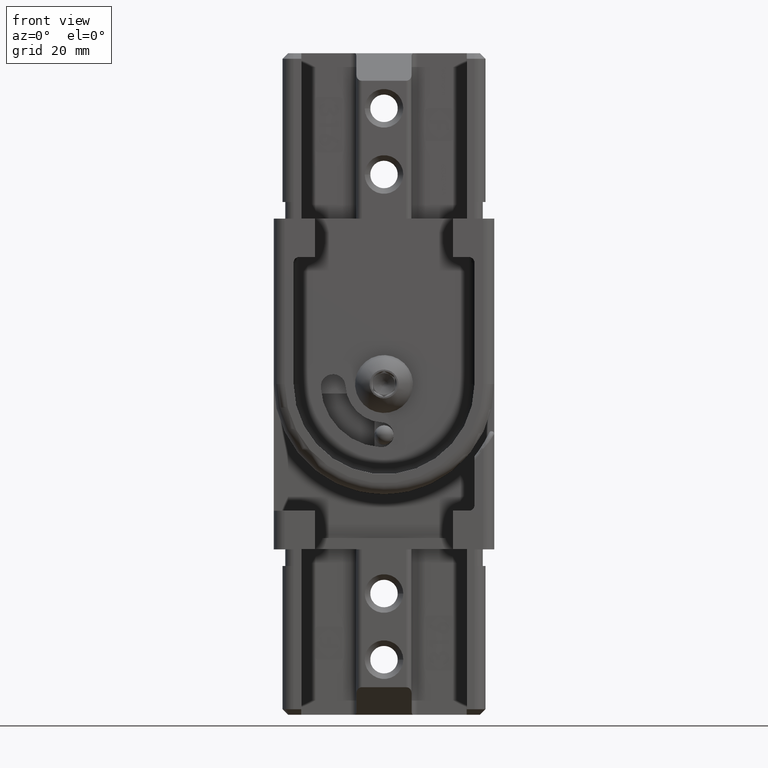
[diagram: clean part render]
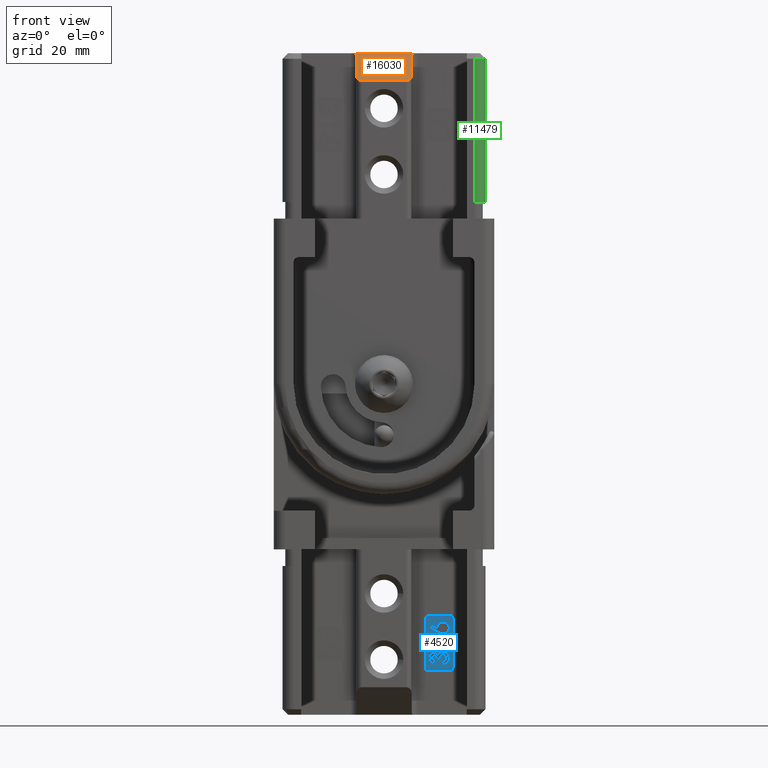
[diagram: same view with three faces highlighted in distinct colors, each labeled with its STEP entity id]
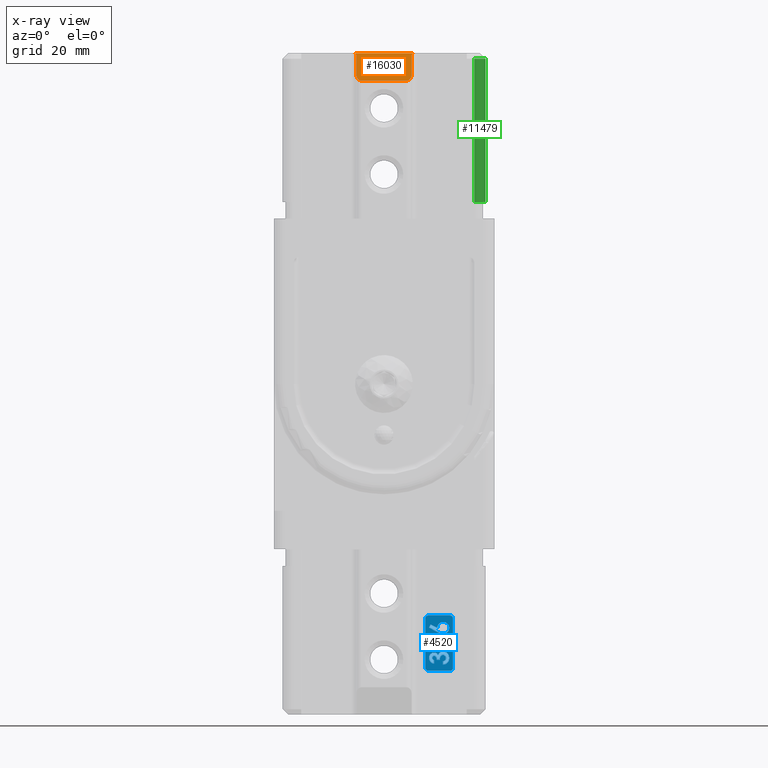
[diagram: x-ray of the same camera — body ghosted, the three highlighted faces saturated]
A machine part, front view with three faces highlighted in distinct colors.
The next image is the same camera in x-ray (body ghosted, the three faces saturated) — at least one of them is partly hidden behind the body in this view.
Their STEP definitions:

[orange] entity #16030 — the highlighted planar face has unit normal (0, -0.7071, 0.7071).
#287 = CARTESIAN_POINT ( 'NONE',  ( -5.000000000000000000, 14.89999999999999700, 36.39999999999999100 ) ) ;
#374 = CARTESIAN_POINT ( 'NONE',  ( -5.069028199700079000, 15.32537093293344000, 36.82537093293343800 ) ) ;
#1169 = VERTEX_POINT ( 'NONE', #15595 ) ;
#1243 = CARTESIAN_POINT ( 'NONE',  ( -4.585786437626914800, 10.50000000000001100, 32.00000000000000700 ) ) ;
#1332 = CARTESIAN_POINT ( 'NONE',  ( -5.000000000000007100, 10.91421356237310300, 32.41421356237310600 ) ) ;
#1793 = CARTESIAN_POINT ( 'NONE',  ( 4.585786437626902400, 10.50000000000000400, 31.99999999999999300 ) ) ;
#1884 = CARTESIAN_POINT ( 'NONE',  ( 5.000000000000001800, 10.91421356237310100, 32.41421356237309900 ) ) ;
#3739 = DIRECTION ( 'NONE',  ( 0.0000000000000000000, -0.7071067811865474600, 0.7071067811865475700 ) ) ;
#4093 = EDGE_CURVE ( 'NONE', #23856, #1169, #7357, .T. ) ;
#4576 =( BOUNDED_CURVE ( )  B_SPLINE_CURVE ( 3, ( #25301, #374, #14640, #287 ),
 .UNSPECIFIED., .F., .F. ) 
 B_SPLINE_CURVE_WITH_KNOTS ( ( 4, 4 ),
 ( 4.068887871591405400, 4.712388980384701200 ),
 .UNSPECIFIED. ) 
 CURVE ( )  GEOMETRIC_REPRESENTATION_ITEM ( )  RATIONAL_B_SPLINE_CURVE ( ( 1.000000000000000000, 0.9657888653670079200, 0.9657888653670079200, 1.000000000000000000 ) ) 
 REPRESENTATION_ITEM ( '' )  );
#4978 = EDGE_CURVE ( 'NONE', #5609, #25141, #22302, .T. ) ;
#5413 = CARTESIAN_POINT ( 'NONE',  ( -5.000000000000002700, 11.50000000000001200, 33.00000000000000700 ) ) ;
#5500 = CARTESIAN_POINT ( 'NONE',  ( 20.00100000000000500, 10.50000000000000700, 32.00000000000000000 ) ) ;
#5501 = CARTESIAN_POINT ( 'NONE',  ( -4.000000000000010700, 10.50000000000000700, 32.00000000000000000 ) ) ;
#5519 = CARTESIAN_POINT ( 'NONE',  ( 4.999999999999999100, 15.11828633383320200, 36.61828633383319700 ) ) ;
#5609 = VERTEX_POINT ( 'NONE', #24776 ) ;
#5652 = CARTESIAN_POINT ( 'NONE',  ( -5.000000000000002700, 10.50000000000000400, 31.99999999999999300 ) ) ;
#5702 = CARTESIAN_POINT ( 'NONE',  ( -5.200000000000002800, 15.50000000000000700, 37.00000000000000000 ) ) ;
#5961 = CARTESIAN_POINT ( 'NONE',  ( 3.999999999999991600, 10.50000000000000700, 32.00000000000000000 ) ) ;
#6190 = FACE_OUTER_BOUND ( 'NONE', #26833, .T. ) ;
#6235 = ORIENTED_EDGE ( 'NONE', *, *, #4093, .F. ) ;
#6447 = LINE ( 'NONE', #16782, #20074 ) ;
#7357 = LINE ( 'NONE', #19368, #18755 ) ;
#7678 = CARTESIAN_POINT ( 'NONE',  ( 5.199999999999999300, 15.50000000000000400, 37.00000000000000000 ) ) ;
#7722 = CARTESIAN_POINT ( 'NONE',  ( 5.069028199700078100, 15.32537093293344000, 36.82537093293343800 ) ) ;
#7841 = ORIENTED_EDGE ( 'NONE', *, *, #7950, .T. ) ;
#7950 = EDGE_CURVE ( 'NONE', #25141, #26717, #24415, .T. ) ;
#8573 = ORIENTED_EDGE ( 'NONE', *, *, #15115, .T. ) ;
#9086 = LINE ( 'NONE', #5500, #19472 ) ;
#11705 = CARTESIAN_POINT ( 'NONE',  ( 5.000000000000000000, 14.89999999999999900, 36.39999999999999900 ) ) ;
#11867 = DIRECTION ( 'NONE',  ( -1.000000000000000000, 0.0000000000000000000, 0.0000000000000000000 ) ) ;
#13129 = VERTEX_POINT ( 'NONE', #15137 ) ;
#13422 = ORIENTED_EDGE ( 'NONE', *, *, #21711, .F. ) ;
#14640 = CARTESIAN_POINT ( 'NONE',  ( -4.999999999999999100, 15.11828633383319900, 36.61828633383320400 ) ) ;
#14998 = CARTESIAN_POINT ( 'NONE',  ( -4.000000000000010700, 10.50000000000000700, 32.00000000000000000 ) ) ;
#15115 = EDGE_CURVE ( 'NONE', #15440, #5609, #4576, .T. ) ;
#15137 = CARTESIAN_POINT ( 'NONE',  ( 3.999999999999991600, 10.50000000000000700, 32.00000000000000000 ) ) ;
#15324 =( BOUNDED_CURVE ( )  B_SPLINE_CURVE ( 3, ( #24178, #7722, #5519, #11705 ),
 .UNSPECIFIED., .F., .F. ) 
 B_SPLINE_CURVE_WITH_KNOTS ( ( 4, 4 ),
 ( 4.068887871591408100, 4.712388980384693200 ),
 .UNSPECIFIED. ) 
 CURVE ( )  GEOMETRIC_REPRESENTATION_ITEM ( )  RATIONAL_B_SPLINE_CURVE ( ( 1.000000000000000000, 0.9657888653670090300, 0.9657888653670090300, 1.000000000000000000 ) ) 
 REPRESENTATION_ITEM ( '' )  );
#15440 = VERTEX_POINT ( 'NONE', #5702 ) ;
#15595 = CARTESIAN_POINT ( 'NONE',  ( 4.999999999999997300, 11.50000000000001400, 33.00000000000000700 ) ) ;
#15612 = AXIS2_PLACEMENT_3D ( 'NONE', #16101, #3739, #24490 ) ;
#16030 = ADVANCED_FACE ( 'NONE', ( #6190 ), #22402, .T. ) ;
#16037 = CARTESIAN_POINT ( 'NONE',  ( 5.000000000000000000, 14.89999999999999900, 36.39999999999999900 ) ) ;
#16101 = CARTESIAN_POINT ( 'NONE',  ( 20.00100000000000500, 10.50000000000000700, 32.00000000000000000 ) ) ;
#16677 = ORIENTED_EDGE ( 'NONE', *, *, #24171, .T. ) ;
#16782 = CARTESIAN_POINT ( 'NONE',  ( 20.00100000000000500, 15.50000000000000700, 37.00000000000000000 ) ) ;
#16989 = CARTESIAN_POINT ( 'NONE',  ( -5.000000000000002700, 11.50000000000001200, 33.00000000000000700 ) ) ;
#18073 = VECTOR ( 'NONE', #22380, 1000.000000000000000 ) ;
#18755 = VECTOR ( 'NONE', #21827, 1000.000000000000000 ) ;
#19368 = CARTESIAN_POINT ( 'NONE',  ( 4.999999999999997300, 10.50000000000001100, 32.00000000000000700 ) ) ;
#19472 = VECTOR ( 'NONE', #11867, 1000.000000000000000 ) ;
#20074 = VECTOR ( 'NONE', #25169, 1000.000000000000000 ) ;
#20395 = EDGE_CURVE ( 'NONE', #1169, #13129, #22040, .T. ) ;
#21711 = EDGE_CURVE ( 'NONE', #13129, #26717, #9086, .T. ) ;
#21827 = DIRECTION ( 'NONE',  ( -3.607749215725602900E-016, -0.7071067811865475700, -0.7071067811865474600 ) ) ;
#22040 =( BOUNDED_CURVE ( )  B_SPLINE_CURVE ( 3, ( #24798, #1884, #1793, #5961 ),
 .UNSPECIFIED., .F., .F. ) 
 B_SPLINE_CURVE_WITH_KNOTS ( ( 4, 4 ),
 ( 4.712388980384682600, 6.283185307179593300 ),
 .UNSPECIFIED. ) 
 CURVE ( )  GEOMETRIC_REPRESENTATION_ITEM ( )  RATIONAL_B_SPLINE_CURVE ( ( 1.000000000000000000, 0.8047378541243617200, 0.8047378541243617200, 1.000000000000000000 ) ) 
 REPRESENTATION_ITEM ( '' )  );
#22260 = VERTEX_POINT ( 'NONE', #7678 ) ;
#22302 = LINE ( 'NONE', #5652, #18073 ) ;
#22380 = DIRECTION ( 'NONE',  ( -3.607749215725602900E-016, -0.7071067811865475700, -0.7071067811865474600 ) ) ;
#22402 = PLANE ( 'NONE',  #15612 ) ;
#23856 = VERTEX_POINT ( 'NONE', #16037 ) ;
#24171 = EDGE_CURVE ( 'NONE', #22260, #15440, #6447, .T. ) ;
#24178 = CARTESIAN_POINT ( 'NONE',  ( 5.199999999999999300, 15.50000000000000400, 37.00000000000000000 ) ) ;
#24415 =( BOUNDED_CURVE ( )  B_SPLINE_CURVE ( 3, ( #5413, #1332, #1243, #5501 ),
 .UNSPECIFIED., .F., .T. ) 
 B_SPLINE_CURVE_WITH_KNOTS ( ( 4, 4 ),
 ( 4.712388980384682600, 6.283185307179577400 ),
 .UNSPECIFIED. ) 
 CURVE ( )  GEOMETRIC_REPRESENTATION_ITEM ( )  RATIONAL_B_SPLINE_CURVE ( ( 1.000000000000000000, 0.8047378541243654900, 0.8047378541243654900, 1.000000000000000000 ) ) 
 REPRESENTATION_ITEM ( '' )  );
#24490 = DIRECTION ( 'NONE',  ( 0.0000000000000000000, -0.7071067811865475700, -0.7071067811865474600 ) ) ;
#24776 = CARTESIAN_POINT ( 'NONE',  ( -5.000000000000000000, 14.89999999999999700, 36.39999999999999100 ) ) ;
#24781 = ORIENTED_EDGE ( 'NONE', *, *, #26921, .F. ) ;
#24798 = CARTESIAN_POINT ( 'NONE',  ( 4.999999999999997300, 11.50000000000001400, 33.00000000000000700 ) ) ;
#25141 = VERTEX_POINT ( 'NONE', #16989 ) ;
#25169 = DIRECTION ( 'NONE',  ( -1.000000000000000000, 0.0000000000000000000, 0.0000000000000000000 ) ) ;
#25301 = CARTESIAN_POINT ( 'NONE',  ( -5.200000000000002800, 15.50000000000000700, 37.00000000000000000 ) ) ;
#25891 = ORIENTED_EDGE ( 'NONE', *, *, #4978, .T. ) ;
#26717 = VERTEX_POINT ( 'NONE', #14998 ) ;
#26769 = ORIENTED_EDGE ( 'NONE', *, *, #20395, .F. ) ;
#26833 = EDGE_LOOP ( 'NONE', ( #6235, #24781, #16677, #8573, #25891, #7841, #13422, #26769 ) ) ;
#26921 = EDGE_CURVE ( 'NONE', #22260, #23856, #15324, .T. ) ;

[blue] entity #4520 — the highlighted planar face has unit normal (0, -1, -0).
#46 = CARTESIAN_POINT ( 'NONE',  ( -10.80318042775634300, 16.10000000000000100, 26.16308492140074900 ) ) ;
#98 = VERTEX_POINT ( 'NONE', #19315 ) ;
#315 = CARTESIAN_POINT ( 'NONE',  ( -9.503248005261255600, 16.10000000000000100, 25.82321549108602800 ) ) ;
#323 = VERTEX_POINT ( 'NONE', #16571 ) ;
#343 = CARTESIAN_POINT ( 'NONE',  ( -8.250000000000001800, 16.10000000000001600, 23.55128205128206900 ) ) ;
#395 = CARTESIAN_POINT ( 'NONE',  ( -9.551282051282061800, 16.10000000000000100, 27.00641025641027000 ) ) ;
#455 = EDGE_LOOP ( 'NONE', ( #12006, #26363, #26329, #19522, #5206, #10451, #7596 ) ) ;
#461 = CARTESIAN_POINT ( 'NONE',  ( -11.09114166643385200, 16.10000000000000500, 27.07208534005086500 ) ) ;
#535 = CARTESIAN_POINT ( 'NONE',  ( -10.91036498014234200, 16.10000000000000500, 27.20628824924288500 ) ) ;
#539 = CARTESIAN_POINT ( 'NONE',  ( -11.71330863132957100, 16.10000000000000100, 26.15021368007940700 ) ) ;
#551 = CARTESIAN_POINT ( 'NONE',  ( -11.17169239044171800, 16.10000000000001600, 20.26285249890214500 ) ) ;
#566 = CARTESIAN_POINT ( 'NONE',  ( -12.50000000000000900, 16.10000000000000100, 28.50000000000001100 ) ) ;
#570 = CARTESIAN_POINT ( 'NONE',  ( -9.078024839743593000, 16.10000000000000100, 25.70512820512822200 ) ) ;
#706 = CARTESIAN_POINT ( 'NONE',  ( -11.51242083411554200, 16.10000000000000100, 25.86664949534316800 ) ) ;
#721 = VERTEX_POINT ( 'NONE', #23640 ) ;
#722 = CARTESIAN_POINT ( 'NONE',  ( -11.76241821210552300, 16.10000000000001200, 20.84479301152723000 ) ) ;
#744 = VECTOR ( 'NONE', #8411, 1000.000000000000000 ) ;
#795 = DIRECTION ( 'NONE',  ( -9.367723236708683500E-031, -1.000000000000000000, 8.874339118199500700E-031 ) ) ;
#823 = VERTEX_POINT ( 'NONE', #1933 ) ;
#841 = CARTESIAN_POINT ( 'NONE',  ( -11.24573615243307500, 16.10000000000001200, 22.22048486998495100 ) ) ;
#949 = LINE ( 'NONE', #5444, #5514 ) ;
#953 = CARTESIAN_POINT ( 'NONE',  ( -9.942267020085745700, 16.10000000000000100, 25.90188241105384400 ) ) ;
#1072 = ORIENTED_EDGE ( 'NONE', *, *, #16894, .T. ) ;
#1088 = LINE ( 'NONE', #18762, #744 ) ;
#1115 = CARTESIAN_POINT ( 'NONE',  ( -11.33670230279407000, 16.10000000000001900, 22.16670013270956800 ) ) ;
#1145 = CARTESIAN_POINT ( 'NONE',  ( -10.26506399259543800, 16.10000000000001900, 22.23949485338368200 ) ) ;
#1154 = CARTESIAN_POINT ( 'NONE',  ( -9.902023247793970000, 16.10000000000000100, 25.96357500261423800 ) ) ;
#1202 = CARTESIAN_POINT ( 'NONE',  ( -11.15150167772100800, 16.10000000000001900, 22.26402236105817100 ) ) ;
#1234 = CARTESIAN_POINT ( 'NONE',  ( -10.26940716433733900, 16.10000000000000500, 25.62134951130693500 ) ) ;
#1420 = EDGE_CURVE ( 'NONE', #6739, #6332, #17244, .T. ) ;
#1483 = EDGE_CURVE ( 'NONE', #11741, #17002, #22947, .T. ) ;
#1720 = VECTOR ( 'NONE', #5181, 1000.000000000000000 ) ;
#1827 = DIRECTION ( 'NONE',  ( 0.0000000000000000000, 0.0000000000000000000, -1.000000000000000000 ) ) ;
#1883 = CARTESIAN_POINT ( 'NONE',  ( -8.000000000000003600, 16.10000000000001600, 19.50000000000000400 ) ) ;
#1925 = ORIENTED_EDGE ( 'NONE', *, *, #6191, .T. ) ;
#1933 = CARTESIAN_POINT ( 'NONE',  ( -10.74529246794871700, 16.10000000000001600, 22.33974358974360900 ) ) ;
#2209 = ORIENTED_EDGE ( 'NONE', *, *, #3021, .T. ) ;
#2276 = CARTESIAN_POINT ( 'NONE',  ( -10.80271706112691500, 16.10000000000000500, 27.89411937377287000 ) ) ;
#2304 = CARTESIAN_POINT ( 'NONE',  ( -8.728763759368119300, 16.10000000000000100, 25.77378589908969200 ) ) ;
#2492 = FACE_BOUND ( 'NONE', #23280, .T. ) ;
#2513 = CARTESIAN_POINT ( 'NONE',  ( -8.367760420921609200, 16.10000000000000100, 26.05702895226354300 ) ) ;
#2548 = LINE ( 'NONE', #16208, #16868 ) ;
#2549 = CARTESIAN_POINT ( 'NONE',  ( -11.21153846153846500, 16.10000000000000100, 26.70492788461539700 ) ) ;
#2605 = CARTESIAN_POINT ( 'NONE',  ( -8.459496391056903900, 16.10000000000000100, 27.42996837005931000 ) ) ;
#2607 = CARTESIAN_POINT ( 'NONE',  ( -9.658649117974043500, 16.10000000000001600, 21.02963526855861800 ) ) ;
#2616 = CARTESIAN_POINT ( 'NONE',  ( -8.921308338936240600, 16.10000000000000100, 26.99339516774970700 ) ) ;
#2644 = ORIENTED_EDGE ( 'NONE', *, *, #18229, .T. ) ;
#2659 = ORIENTED_EDGE ( 'NONE', *, *, #26201, .T. ) ;
#2673 = ORIENTED_EDGE ( 'NONE', *, *, #21059, .T. ) ;
#2704 = CARTESIAN_POINT ( 'NONE',  ( -8.875053566714051100, 16.10000000000000500, 26.94091131416438100 ) ) ;
#2709 = CARTESIAN_POINT ( 'NONE',  ( -9.224612638659742500, 16.10000000000000100, 26.35044935993496300 ) ) ;
#2726 = CARTESIAN_POINT ( 'NONE',  ( -10.69508921674235000, 16.10000000000000100, 27.27166015525148900 ) ) ;
#2732 = CARTESIAN_POINT ( 'NONE',  ( -10.93474030212792200, 16.10000000000000100, 25.54544686638646300 ) ) ;
#2743 = LINE ( 'NONE', #21755, #4695 ) ;
#2744 = CARTESIAN_POINT ( 'NONE',  ( -10.78740878763792200, 16.10000000000001600, 20.18682043053589900 ) ) ;
#2781 = CARTESIAN_POINT ( 'NONE',  ( -8.160256410256415900, 16.10000000000000500, 26.68249198717950000 ) ) ;
#2794 = CARTESIAN_POINT ( 'NONE',  ( -9.135846199586797700, 16.10000000000000500, 26.33404201207730500 ) ) ;
#2809 = DIRECTION ( 'NONE',  ( 0.0000000000000000000, 8.874339118199500700E-031, 1.000000000000000000 ) ) ;
#2818 = CARTESIAN_POINT ( 'NONE',  ( -11.52397492804899000, 16.10000000000001200, 20.49812518747738100 ) ) ;
#2899 = CARTESIAN_POINT ( 'NONE',  ( -11.75000000000000900, 16.10000000000001600, 23.55128205128206200 ) ) ;
#2923 = DIRECTION ( 'NONE',  ( 0.0000000000000000000, -8.874339118199500700E-031, -1.000000000000000000 ) ) ;
#2931 = CARTESIAN_POINT ( 'NONE',  ( -11.71152360439911700, 16.10000000000001600, 21.77828565783323400 ) ) ;
#2954 = CARTESIAN_POINT ( 'NONE',  ( -10.71792202447483300, 16.10000000000001600, 22.33926237677362500 ) ) ;
#2963 = CARTESIAN_POINT ( 'NONE',  ( -9.171885312453660800, 16.10000000000000500, 26.33547223865901500 ) ) ;
#3021 = EDGE_CURVE ( 'NONE', #5971, #9790, #25753, .T. ) ;
#3054 = CARTESIAN_POINT ( 'NONE',  ( -10.33576858231906400, 16.10000000000000100, 25.59207136865745400 ) ) ;
#3104 = CARTESIAN_POINT ( 'NONE',  ( -11.65382924249712600, 16.10000000000001900, 21.86790617972454600 ) ) ;
#3107 = EDGE_CURVE ( 'NONE', #10022, #22872, #14061, .T. ) ;
#3116 = CARTESIAN_POINT ( 'NONE',  ( -10.70673076923077900, 16.10000000000000100, 25.52564102564104000 ) ) ;
#3130 = VERTEX_POINT ( 'NONE', #14973 ) ;
#3132 = CIRCLE ( 'NONE', #12050, 0.5000000000000004400 ) ;
#3133 = CARTESIAN_POINT ( 'NONE',  ( -10.40454252294400200, 16.10000000000000500, 25.56726913683954200 ) ) ;
#3194 = CARTESIAN_POINT ( 'NONE',  ( -11.58570222912211300, 16.10000000000001200, 21.95272757307410700 ) ) ;
#3206 = CARTESIAN_POINT ( 'NONE',  ( -8.000000000000003600, 16.10000000000000100, 29.00000000000000400 ) ) ;
#3253 = EDGE_CURVE ( 'NONE', #17015, #3130, #20932, .T. ) ;
#3260 = DIRECTION ( 'NONE',  ( -4.336808689942018700E-019, -8.875302083171696100E-031, -1.000000000000000000 ) ) ;
#3406 = B_SPLINE_CURVE_WITH_KNOTS ( 'NONE', 3,
 ( #23059, #15280, #9117, #15377, #13551, #15643, #2931, #3104, #3194, #11475, #19471, #1115, #841, #1202, #7036, #21583, #7127, #23668, #11204 ),
 .UNSPECIFIED., .F., .F.,
 ( 4, 1, 1, 1, 1, 1, 1, 1, 1, 1, 1, 1, 1, 1, 1, 1, 4 ),
 ( 0.0000000000000000000, 0.06648593787487822000, 0.1307356009388766500, 0.1932868395043465200, 0.2552914267067077400, 0.3165376028954671200, 0.3788667103911648700, 0.4418772064706730200, 0.5071174914664499100, 0.5722713919203373800, 0.6354271335389666300, 0.6968172524575668700, 0.7573566333814838500, 0.8172651168318806300, 0.8771342994595144900, 0.9380198203164554800, 1.000000000000000000 ),
 .UNSPECIFIED. ) ;
#3458 = CARTESIAN_POINT ( 'NONE',  ( -9.071162369298919600, 16.10000000000000100, 27.71992360724480900 ) ) ;
#3565 = CARTESIAN_POINT ( 'NONE',  ( -10.64296136368946200, 16.10000000000000100, 26.15583642781092200 ) ) ;
#3655 = VERTEX_POINT ( 'NONE', #6700 ) ;
#3875 = ORIENTED_EDGE ( 'NONE', *, *, #6287, .T. ) ;
#3895 = CARTESIAN_POINT ( 'NONE',  ( -8.442107371794879400, 16.10000000000001600, 20.63110977564104700 ) ) ;
#4352 = CARTESIAN_POINT ( 'NONE',  ( -11.35588806132501100, 16.10000000000000100, 27.69872904674105400 ) ) ;
#4409 = CARTESIAN_POINT ( 'NONE',  ( -11.17506908713481600, 16.10000000000000100, 26.48752382872527600 ) ) ;
#4487 = CARTESIAN_POINT ( 'NONE',  ( -9.595103745075476800, 16.10000000000000500, 25.88984717008938200 ) ) ;
#4520 = ADVANCED_FACE ( 'NONE', ( #8009, #2492, #17110, #11573 ), #23711, .T. ) ;
#4586 = CARTESIAN_POINT ( 'NONE',  ( -8.431194966909847800, 16.10000000000000100, 25.98553498796160000 ) ) ;
#4640 = LINE ( 'NONE', #22583, #19922 ) ;
#4693 = CARTESIAN_POINT ( 'NONE',  ( -9.643796370547061500, 16.10000000000001600, 21.13406852761388100 ) ) ;
#4695 = VECTOR ( 'NONE', #23943, 1000.000000000000000 ) ;
#4718 = CARTESIAN_POINT ( 'NONE',  ( -10.67307692307692700, 16.10000000000000100, 27.27564102564106800 ) ) ;
#4721 = CARTESIAN_POINT ( 'NONE',  ( -11.82141361257451200, 16.10000000000000500, 26.48708314706834300 ) ) ;
#4766 = CARTESIAN_POINT ( 'NONE',  ( -8.342254135006397700, 16.10000000000000100, 27.29382358373271000 ) ) ;
#4798 = CARTESIAN_POINT ( 'NONE',  ( -11.33873469184026200, 16.10000000000000500, 25.71720757462995300 ) ) ;
#4943 = EDGE_CURVE ( 'NONE', #20215, #26370, #15816, .T. ) ;
#5045 = CARTESIAN_POINT ( 'NONE',  ( -9.547732545153568400, 16.10000000000000500, 26.96476938780637100 ) ) ;
#5072 = B_SPLINE_CURVE_WITH_KNOTS ( 'NONE', 3,
 ( #16176, #8209, #22385, #5916, #26559, #7945, #12281, #20463, #22479, #24569, #12099 ),
 .UNSPECIFIED., .F., .F.,
 ( 4, 1, 1, 1, 1, 1, 1, 1, 4 ),
 ( 0.0000000000000000000, 0.1261402264439200100, 0.2461990168304723500, 0.3626638371197812800, 0.4838692804749635800, 0.6074311080036695100, 0.7313587644312750100, 0.8610640124343175200, 0.9999999999999998900 ),
 .UNSPECIFIED. ) ;
#5122 = CARTESIAN_POINT ( 'NONE',  ( -9.958228046056254000, 16.10000000000001200, 20.49226681365217600 ) ) ;
#5135 = CARTESIAN_POINT ( 'NONE',  ( -10.55090404740255200, 16.10000000000000900, 25.53509080515535600 ) ) ;
#5181 = DIRECTION ( 'NONE',  ( 1.000000000000000000, 9.860863629119826200E-031, -8.673617379884035500E-016 ) ) ;
#5206 = ORIENTED_EDGE ( 'NONE', *, *, #5342, .T. ) ;
#5211 = CARTESIAN_POINT ( 'NONE',  ( -10.12708762683483800, 16.10000000000001200, 20.35811149654123800 ) ) ;
#5215 = CARTESIAN_POINT ( 'NONE',  ( -10.66302878236360000, 16.10000000000001900, 22.33829727220408000 ) ) ;
#5280 = DIRECTION ( 'NONE',  ( 1.000000000000000000, 9.860761302471815900E-031, 0.0000000000000000000 ) ) ;
#5309 = CARTESIAN_POINT ( 'NONE',  ( -10.71159969807508900, 16.10000000000001200, 20.18688205677450400 ) ) ;
#5342 = EDGE_CURVE ( 'NONE', #22829, #10465, #11833, .T. ) ;
#5438 = CARTESIAN_POINT ( 'NONE',  ( -9.811398237179497900, 16.10000000000000100, 26.17347756410260500 ) ) ;
#5444 = CARTESIAN_POINT ( 'NONE',  ( -10.67307692307693400, 16.10000000000000100, 27.90384615384616800 ) ) ;
#5466 = ORIENTED_EDGE ( 'NONE', *, *, #13149, .T. ) ;
#5496 = CARTESIAN_POINT ( 'NONE',  ( -9.819589119033770100, 16.10000000000000500, 26.14852978287458300 ) ) ;
#5514 = VECTOR ( 'NONE', #3260, 1000.000000000000000 ) ;
#5678 = EDGE_CURVE ( 'NONE', #323, #17015, #7012, .T. ) ;
#5695 = ORIENTED_EDGE ( 'NONE', *, *, #11279, .T. ) ;
#5775 = ORIENTED_EDGE ( 'NONE', *, *, #23887, .T. ) ;
#5796 = CARTESIAN_POINT ( 'NONE',  ( -10.75020032051282100, 16.10000000000001600, 20.18589743589744500 ) ) ;
#5811 = EDGE_CURVE ( 'NONE', #13957, #20250, #2743, .T. ) ;
#5818 = CARTESIAN_POINT ( 'NONE',  ( -12.50000000000000900, 16.10000000000001600, 19.50000000000003200 ) ) ;
#5819 = CARTESIAN_POINT ( 'NONE',  ( -8.835935153550384100, 16.10000000000000100, 27.66553492456176500 ) ) ;
#5852 = CARTESIAN_POINT ( 'NONE',  ( -10.13461538461538900, 16.10000000000000100, 27.00641025641027700 ) ) ;
#5916 = CARTESIAN_POINT ( 'NONE',  ( -8.987292612090842100, 16.09999999999999100, 26.35553856162117700 ) ) ;
#5971 = VERTEX_POINT ( 'NONE', #11646 ) ;
#6042 = EDGE_CURVE ( 'NONE', #3655, #14365, #24542, .T. ) ;
#6114 = VERTEX_POINT ( 'NONE', #3895 ) ;
#6152 = VERTEX_POINT ( 'NONE', #6482 ) ;
#6191 = EDGE_CURVE ( 'NONE', #6152, #7812, #22935, .T. ) ;
#6234 = EDGE_CURVE ( 'NONE', #721, #9660, #22255, .T. ) ;
#6287 = EDGE_CURVE ( 'NONE', #24294, #5971, #8761, .T. ) ;
#6332 = VERTEX_POINT ( 'NONE', #23991 ) ;
#6420 = CARTESIAN_POINT ( 'NONE',  ( -11.15513777135416600, 16.10000000000000500, 26.43868573099788900 ) ) ;
#6482 = CARTESIAN_POINT ( 'NONE',  ( -11.75000000000000900, 16.10000000000001600, 23.55128205128206200 ) ) ;
#6486 = ORIENTED_EDGE ( 'NONE', *, *, #6042, .T. ) ;
#6512 = CARTESIAN_POINT ( 'NONE',  ( -11.02641734240513400, 16.10000000000000500, 26.27329090371708600 ) ) ;
#6606 = CARTESIAN_POINT ( 'NONE',  ( -9.300221316698621600, 16.10000000000000100, 25.73302872887777000 ) ) ;
#6610 = CARTESIAN_POINT ( 'NONE',  ( -11.06447305748351800, 16.10000000000000100, 26.30968982410633600 ) ) ;
#6649 = CARTESIAN_POINT ( 'NONE',  ( -8.573144803372729300, 16.10000000000000100, 25.86297424935138500 ) ) ;
#6700 = CARTESIAN_POINT ( 'NONE',  ( -7.500000000000000900, 16.10000000000000100, 28.50000000000000400 ) ) ;
#6739 = VERTEX_POINT ( 'NONE', #21315 ) ;
#6892 = EDGE_CURVE ( 'NONE', #7812, #26344, #15603, .T. ) ;
#6898 = CARTESIAN_POINT ( 'NONE',  ( -12.00000000000000700, 16.10000000000001600, 19.50000000000001100 ) ) ;
#6901 = ORIENTED_EDGE ( 'NONE', *, *, #3253, .T. ) ;
#6915 = CARTESIAN_POINT ( 'NONE',  ( -11.58940075707278300, 16.10000000000000500, 25.95441902461229900 ) ) ;
#6991 = CARTESIAN_POINT ( 'NONE',  ( -9.276058402376671500, 16.10000000000000100, 26.37334935217584000 ) ) ;
#7012 = B_SPLINE_CURVE_WITH_KNOTS ( 'NONE', 3,
 ( #14771, #10612, #19042, #8324, #21058, #4409, #6420, #12780, #14854, #6610, #6512, #24973, #21142, #8695, #8417, #46, #22979, #23254, #24883 ),
 .UNSPECIFIED., .F., .F.,
 ( 4, 1, 1, 1, 1, 1, 1, 1, 1, 1, 1, 1, 1, 1, 1, 1, 4 ),
 ( 0.0000000000000000000, 0.06938477227924430600, 0.1359092462060872700, 0.2009698328368453000, 0.2641142100625632500, 0.3266421505716156100, 0.3891254282603178200, 0.4514745255271063200, 0.5149056233695155100, 0.5775339387696426500, 0.6393772666410493200, 0.6987094200834069700, 0.7581179832849753700, 0.8170784405649679200, 0.8764458722703415400, 0.9372937263216613000, 1.000000000000000000 ),
 .UNSPECIFIED. ) ;
#7036 = CARTESIAN_POINT ( 'NONE',  ( -11.05429916105318400, 16.10000000000001600, 22.29799132131127900 ) ) ;
#7037 = ORIENTED_EDGE ( 'NONE', *, *, #6234, .T. ) ;
#7086 = DIRECTION ( 'NONE',  ( 0.0000000000000000000, 0.0000000000000000000, -1.000000000000000000 ) ) ;
#7127 = CARTESIAN_POINT ( 'NONE',  ( -10.85070274604525800, 16.10000000000001200, 22.33702747818241400 ) ) ;
#7193 = CARTESIAN_POINT ( 'NONE',  ( -10.67307692307693400, 16.10000000000000100, 27.90384615384616800 ) ) ;
#7250 = CARTESIAN_POINT ( 'NONE',  ( -9.811398237179497900, 16.10000000000000100, 26.17347756410260500 ) ) ;
#7519 = CARTESIAN_POINT ( 'NONE',  ( -10.62804332504397200, 16.10000000000000100, 25.52740578130104200 ) ) ;
#7596 = ORIENTED_EDGE ( 'NONE', *, *, #14760, .T. ) ;
#7699 = CARTESIAN_POINT ( 'NONE',  ( -10.15927430762143200, 16.10000000000000100, 26.72474301564903200 ) ) ;
#7812 = VERTEX_POINT ( 'NONE', #19000 ) ;
#7945 = CARTESIAN_POINT ( 'NONE',  ( -8.880679194818712900, 16.10000000000000100, 26.42971596331909000 ) ) ;
#8009 = FACE_BOUND ( 'NONE', #18618, .T. ) ;
#8209 = CARTESIAN_POINT ( 'NONE',  ( -9.095192291133750800, 16.10000000000000100, 26.33453286798099300 ) ) ;
#8293 = DIRECTION ( 'NONE',  ( -9.367723236708683500E-031, -1.000000000000000000, -8.869283552095484200E-031 ) ) ;
#8324 = CARTESIAN_POINT ( 'NONE',  ( -11.20331563456058400, 16.10000000000000100, 26.59159892302749700 ) ) ;
#8378 = LINE ( 'NONE', #25567, #22699 ) ;
#8411 = DIRECTION ( 'NONE',  ( -4.336808689942018700E-019, -8.875302083171696100E-031, -1.000000000000000000 ) ) ;
#8417 = CARTESIAN_POINT ( 'NONE',  ( -10.85211934936477500, 16.10000000000000500, 26.17436059822132000 ) ) ;
#8502 = AXIS2_PLACEMENT_3D ( 'NONE', #21529, #795, #15330 ) ;
#8594 = ORIENTED_EDGE ( 'NONE', *, *, #25380, .T. ) ;
#8680 = CARTESIAN_POINT ( 'NONE',  ( -9.907451923076930500, 16.10000000000001600, 22.07612179487180300 ) ) ;
#8684 = EDGE_CURVE ( 'NONE', #17002, #10022, #5072, .T. ) ;
#8695 = CARTESIAN_POINT ( 'NONE',  ( -10.89847206276766100, 16.10000000000000100, 26.19267477530958700 ) ) ;
#8706 = CARTESIAN_POINT ( 'NONE',  ( -8.175269096922717100, 16.09999999999999800, 26.48387560679485400 ) ) ;
#8714 = CARTESIAN_POINT ( 'NONE',  ( -8.442107371794879400, 16.10000000000001600, 20.63110977564104700 ) ) ;
#8761 = B_SPLINE_CURVE_WITH_KNOTS ( 'NONE', 3,
 ( #17539, #21449, #15155, #2732, #11259, #17263, #13335, #4798, #25472, #706, #6915, #11069, #539, #25628, #17170, #4721, #15243, #11697, #17725 ),
 .UNSPECIFIED., .F., .F.,
 ( 4, 1, 1, 1, 1, 1, 1, 1, 1, 1, 1, 1, 1, 1, 1, 1, 4 ),
 ( 0.0000000000000000000, 0.06282573561256606100, 0.1239321976711594000, 0.1835279292133099900, 0.2422443272975592400, 0.3012472195974578700, 0.3610332825702306500, 0.4219066046748970500, 0.4847516718083317900, 0.5479809981655232600, 0.6103845053602635600, 0.6725126003663617300, 0.7348095298313928000, 0.7979325408163980800, 0.8629635123615996300, 0.9300144884405368000, 0.9999999999999998900 ),
 .UNSPECIFIED. ) ;
#8865 = EDGE_CURVE ( 'NONE', #15674, #6152, #8378, .T. ) ;
#8888 = EDGE_CURVE ( 'NONE', #10465, #25656, #13902, .T. ) ;
#8963 = VECTOR ( 'NONE', #18208, 1000.000000000000000 ) ;
#9009 = CARTESIAN_POINT ( 'NONE',  ( -11.79644627365005700, 16.10000000000001600, 20.94243318956391100 ) ) ;
#9053 = CARTESIAN_POINT ( 'NONE',  ( -8.203536064098221600, 16.10000000000000500, 27.00978132313495900 ) ) ;
#9072 = CARTESIAN_POINT ( 'NONE',  ( -9.479933802867140700, 16.10000000000000100, 26.61108608572236600 ) ) ;
#9117 = CARTESIAN_POINT ( 'NONE',  ( -11.83744840952221700, 16.10000000000001600, 21.36971596539746800 ) ) ;
#9170 = EDGE_CURVE ( 'NONE', #21358, #323, #9553, .T. ) ;
#9242 = VECTOR ( 'NONE', #2809, 1000.000000000000000 ) ;
#9251 = CARTESIAN_POINT ( 'NONE',  ( -9.835683834497752200, 16.10000000000000500, 26.09950851172621000 ) ) ;
#9267 = LINE ( 'NONE', #19825, #25229 ) ;
#9516 = CARTESIAN_POINT ( 'NONE',  ( -10.14523726964137600, 16.10000000000000500, 25.69656827592020000 ) ) ;
#9553 = B_SPLINE_CURVE_WITH_KNOTS ( 'NONE', 3,
 ( #4718, #2726, #17444, #19512, #25377, #535, #25709, #25549, #15235, #461, #19346, #23378, #14986, #25468, #2549 ),
 .UNSPECIFIED., .F., .F.,
 ( 4, 1, 1, 1, 1, 1, 1, 1, 1, 1, 1, 1, 4 ),
 ( 0.0000000000000000000, 0.07734635258732060200, 0.1506523054421715100, 0.2206774854153155400, 0.2865751871342063800, 0.3501884696535638200, 0.4113788387158262600, 0.4699460385526086400, 0.5282337864665752600, 0.6421944316652361500, 0.7553643229127678900, 0.8735561215980485200, 1.000000000000000000 ),
 .UNSPECIFIED. ) ;
#9611 = CARTESIAN_POINT ( 'NONE',  ( -10.13461538461538900, 16.10000000000000100, 27.00641025641027700 ) ) ;
#9653 = EDGE_CURVE ( 'NONE', #10594, #10233, #3132, .T. ) ;
#9660 = VERTEX_POINT ( 'NONE', #18495 ) ;
#9676 = CARTESIAN_POINT ( 'NONE',  ( -10.70042067307693400, 16.10000000000000100, 26.15384615384617500 ) ) ;
#9689 = CARTESIAN_POINT ( 'NONE',  ( -8.833333333333342800, 16.10000000000000100, 24.89743589743591200 ) ) ;
#9790 = VERTEX_POINT ( 'NONE', #7193 ) ;
#9793 = CARTESIAN_POINT ( 'NONE',  ( -11.83974358974359100, 16.10000000000001600, 21.25721153846154400 ) ) ;
#9856 = DIRECTION ( 'NONE',  ( 0.0000000000000000000, 8.874339118199500700E-031, 1.000000000000000000 ) ) ;
#9867 = CARTESIAN_POINT ( 'NONE',  ( -10.43336188487368500, 16.10000000000000100, 26.23920538114669300 ) ) ;
#10022 = VERTEX_POINT ( 'NONE', #23954 ) ;
#10170 = LINE ( 'NONE', #11464, #1720 ) ;
#10188 = CARTESIAN_POINT ( 'NONE',  ( -8.160256410256415900, 16.10000000000001600, 21.18709935897437200 ) ) ;
#10233 = VERTEX_POINT ( 'NONE', #21382 ) ;
#10272 = CARTESIAN_POINT ( 'NONE',  ( -11.83885061049130100, 16.10000000000000500, 26.78022839367859800 ) ) ;
#10358 = CARTESIAN_POINT ( 'NONE',  ( -11.82198398043563800, 16.09999999999999800, 26.97739947364505400 ) ) ;
#10451 = ORIENTED_EDGE ( 'NONE', *, *, #8888, .T. ) ;
#10453 = VECTOR ( 'NONE', #2923, 1000.000000000000000 ) ;
#10456 = CARTESIAN_POINT ( 'NONE',  ( -10.71685456828872800, 16.10000000000000100, 27.90056155747417700 ) ) ;
#10465 = VERTEX_POINT ( 'NONE', #5796 ) ;
#10594 = VERTEX_POINT ( 'NONE', #14532 ) ;
#10609 = CARTESIAN_POINT ( 'NONE',  ( -9.404864614396355900, 16.10000000000000100, 25.76992100700628500 ) ) ;
#10612 = CARTESIAN_POINT ( 'NONE',  ( -11.21120612530901700, 16.10000000000000100, 26.68550787452450000 ) ) ;
#10640 = CARTESIAN_POINT ( 'NONE',  ( -11.71885452326174400, 16.10000000000000100, 27.29420811980754600 ) ) ;
#10718 = B_SPLINE_CURVE_WITH_KNOTS ( 'NONE', 3,
 ( #21418, #2605, #17231, #4766, #11033, #25599, #9053, #23596, #14962, #15206, #2781 ),
 .UNSPECIFIED., .F., .F.,
 ( 4, 1, 1, 1, 1, 1, 1, 1, 4 ),
 ( 0.0000000000000000000, 0.1274068638107695200, 0.2511055387650965000, 0.3729077916389050800, 0.4944963015983294100, 0.6161714362084798100, 0.7405628981726790600, 0.8676048506052737000, 1.000000000000000000 ),
 .UNSPECIFIED. ) ;
#10770 = CARTESIAN_POINT ( 'NONE',  ( -8.485576923076932200, 16.10000000000000100, 27.45582932692310200 ) ) ;
#10788 = CARTESIAN_POINT ( 'NONE',  ( -8.226414023573823900, 16.10000000000000100, 26.30056583998362300 ) ) ;
#10827 = CARTESIAN_POINT ( 'NONE',  ( -9.102564102564112900, 16.10000000000000100, 27.72435897435901400 ) ) ;
#10924 = CARTESIAN_POINT ( 'NONE',  ( -11.83880081080980600, 16.10000000000001600, 21.22094216219149500 ) ) ;
#10949 = ORIENTED_EDGE ( 'NONE', *, *, #8684, .T. ) ;
#11033 = CARTESIAN_POINT ( 'NONE',  ( -8.285273860234818600, 16.10000000000000100, 27.20454386891830400 ) ) ;
#11050 = CARTESIAN_POINT ( 'NONE',  ( -9.504713243218295900, 16.10000000000000500, 26.68750287336796100 ) ) ;
#11069 = CARTESIAN_POINT ( 'NONE',  ( -11.65607403826196500, 16.10000000000000100, 26.04967971888378400 ) ) ;
#11204 = CARTESIAN_POINT ( 'NONE',  ( -10.74529246794871700, 16.10000000000001600, 22.33974358974360900 ) ) ;
#11239 = CARTESIAN_POINT ( 'NONE',  ( -9.525615235969974400, 16.10000000000000100, 26.77872341282965600 ) ) ;
#11259 = CARTESIAN_POINT ( 'NONE',  ( -11.04259162958275400, 16.10000000000000100, 25.57201458196000500 ) ) ;
#11279 = EDGE_CURVE ( 'NONE', #3130, #11741, #20303, .T. ) ;
#11398 = CARTESIAN_POINT ( 'NONE',  ( -10.63577458515844800, 16.10000000000001600, 20.18881619629010900 ) ) ;
#11401 = CARTESIAN_POINT ( 'NONE',  ( -9.988535097802888200, 16.10000000000001600, 22.11589754032516100 ) ) ;
#11464 = CARTESIAN_POINT ( 'NONE',  ( -8.000000000000003600, 16.10000000000001600, 18.99999999999999600 ) ) ;
#11475 = CARTESIAN_POINT ( 'NONE',  ( -11.50867531456095200, 16.10000000000001900, 22.03184551795003900 ) ) ;
#11573 = FACE_BOUND ( 'NONE', #455, .T. ) ;
#11646 = CARTESIAN_POINT ( 'NONE',  ( -11.83974358974359500, 16.10000000000000100, 26.73928285256411300 ) ) ;
#11697 = CARTESIAN_POINT ( 'NONE',  ( -11.83889641001333900, 16.10000000000000100, 26.69599944104894700 ) ) ;
#11726 = LINE ( 'NONE', #566, #10453 ) ;
#11741 = VERTEX_POINT ( 'NONE', #395 ) ;
#11767 = CARTESIAN_POINT ( 'NONE',  ( -10.20148835938347400, 16.09999999999999800, 26.56638596155004000 ) ) ;
#11833 = B_SPLINE_CURVE_WITH_KNOTS ( 'NONE', 3,
 ( #17330, #19398, #4693, #2607, #23603, #17138, #23432, #22049, #21864, #5122, #13572, #5211, #23961, #19766, #23879, #24046, #11398, #5309, #26222 ),
 .UNSPECIFIED., .F., .F.,
 ( 4, 1, 1, 1, 1, 1, 1, 1, 1, 1, 1, 1, 1, 1, 1, 1, 4 ),
 ( 0.0000000000000000000, 0.06332879336011414100, 0.1247364441626568900, 0.1849157484558912900, 0.2443004085890912400, 0.3038255705821008600, 0.3643529976730650000, 0.4260731436723961800, 0.4897209088385828200, 0.5537559315351892100, 0.6164580629276259500, 0.6783188623542999500, 0.7403009402150838600, 0.8026562643773390600, 0.8667321228001692000, 0.9321567378801841600, 0.9999999999999998900 ),
 .UNSPECIFIED. ) ;
#11862 = CARTESIAN_POINT ( 'NONE',  ( -10.26312798293259700, 16.10000000000000500, 26.43184642316315800 ) ) ;
#11917 = CARTESIAN_POINT ( 'NONE',  ( -9.009601351315460200, 16.10000000000000100, 27.71122836382073400 ) ) ;
#12006 = ORIENTED_EDGE ( 'NONE', *, *, #26122, .T. ) ;
#12008 = CARTESIAN_POINT ( 'NONE',  ( -8.505343474271363400, 16.10000000000000100, 27.47375884695599900 ) ) ;
#12050 = AXIS2_PLACEMENT_3D ( 'NONE', #1883, #24699, #20604 ) ;
#12099 = CARTESIAN_POINT ( 'NONE',  ( -8.788461538461541900, 16.10000000000000500, 26.68669871794873000 ) ) ;
#12225 = CIRCLE ( 'NONE', #22016, 0.5000000000000004400 ) ;
#12254 = CARTESIAN_POINT ( 'NONE',  ( -9.117988782051284600, 16.10000000000000100, 26.33333333333336800 ) ) ;
#12281 = CARTESIAN_POINT ( 'NONE',  ( -8.838873338635412600, 16.10000000000000500, 26.48208161350790800 ) ) ;
#12344 = CARTESIAN_POINT ( 'NONE',  ( -11.15608723292404600, 16.10000000000000100, 27.80450241967896800 ) ) ;
#12505 = ORIENTED_EDGE ( 'NONE', *, *, #18126, .T. ) ;
#12682 = CARTESIAN_POINT ( 'NONE',  ( -9.791048624432921300, 16.10000000000000100, 26.13713091667402800 ) ) ;
#12780 = CARTESIAN_POINT ( 'NONE',  ( -11.12878139780617700, 16.10000000000000100, 26.39322066463436300 ) ) ;
#12794 = CARTESIAN_POINT ( 'NONE',  ( -8.311618654643259800, 16.10000000000000500, 26.13365734539567600 ) ) ;
#12884 = CARTESIAN_POINT ( 'NONE',  ( -8.160256410256415900, 16.10000000000000500, 26.68249198717950000 ) ) ;
#12921 = CARTESIAN_POINT ( 'NONE',  ( -11.83693770540408100, 16.10000000000001900, 21.14926717183145800 ) ) ;
#13000 = CARTESIAN_POINT ( 'NONE',  ( -11.44332211931483900, 16.10000000000001900, 20.42507149646946700 ) ) ;
#13149 = EDGE_CURVE ( 'NONE', #24766, #24294, #14592, .T. ) ;
#13319 = CARTESIAN_POINT ( 'NONE',  ( -9.551282051282061800, 16.10000000000000100, 27.00641025641027000 ) ) ;
#13335 = CARTESIAN_POINT ( 'NONE',  ( -11.24439293639715100, 16.10000000000000900, 25.65821915651069700 ) ) ;
#13415 = CARTESIAN_POINT ( 'NONE',  ( -9.047354895950876500, 16.10000000000000100, 25.70583919083720300 ) ) ;
#13498 = CARTESIAN_POINT ( 'NONE',  ( -10.08787906635284100, 16.10000000000000100, 25.74123816740691600 ) ) ;
#13551 = CARTESIAN_POINT ( 'NONE',  ( -11.79476664415562200, 16.10000000000001600, 21.58350295166706800 ) ) ;
#13572 = CARTESIAN_POINT ( 'NONE',  ( -10.03962452475405000, 16.10000000000001600, 20.42047520281111500 ) ) ;
#13577 = CARTESIAN_POINT ( 'NONE',  ( -10.32029456146096000, 16.10000000000001600, 22.26144754243488000 ) ) ;
#13669 = CARTESIAN_POINT ( 'NONE',  ( -10.42886898626868800, 16.10000000000001200, 22.29676115405499500 ) ) ;
#13865 = EDGE_CURVE ( 'NONE', #20250, #6114, #4640, .T. ) ;
#13888 = ORIENTED_EDGE ( 'NONE', *, *, #20533, .T. ) ;
#13902 = B_SPLINE_CURVE_WITH_KNOTS ( 'NONE', 3,
 ( #15256, #2744, #21298, #21207, #23644, #551, #19184, #19358, #13000, #2818, #17279, #25394, #19099, #722, #9009, #17187, #12921, #10924, #23566 ),
 .UNSPECIFIED., .F., .F.,
 ( 4, 1, 1, 1, 1, 1, 1, 1, 1, 1, 1, 1, 1, 1, 1, 1, 4 ),
 ( 0.0000000000000000000, 0.06561322380841620700, 0.1296892073934270700, 0.1919858698791516700, 0.2531356630320320000, 0.3145530835751877400, 0.3762782866901676100, 0.4390248485547369500, 0.5035291028256447800, 0.5680070030121590100, 0.6306722518034348900, 0.6915490534450904300, 0.7520267045593394000, 0.8123988774505585000, 0.8735917362891920700, 0.9360341890924269700, 1.000000000000000000 ),
 .UNSPECIFIED. ) ;
#13957 = VERTEX_POINT ( 'NONE', #8680 ) ;
#14061 = B_SPLINE_CURVE_WITH_KNOTS ( 'NONE', 3,
 ( #19066, #21092, #19156, #23191, #23361, #2704, #2616, #17242, #23284, #21171, #25608 ),
 .UNSPECIFIED., .F., .F.,
 ( 4, 1, 1, 1, 1, 1, 1, 1, 4 ),
 ( 0.0000000000000000000, 0.1235549011213041700, 0.2451707667960308100, 0.3673616828424679000, 0.4937598178773026100, 0.6214265328211056000, 0.7459363928355865500, 0.8722197306102158500, 1.000000000000000000 ),
 .UNSPECIFIED. ) ;
#14099 = CARTESIAN_POINT ( 'NONE',  ( -8.610737841349010300, 16.10000000000000100, 27.55658529940674500 ) ) ;
#14188 = DIRECTION ( 'NONE',  ( -0.4521557177002740700, -1.354456877006164800E-030, -0.8919390152644687300 ) ) ;
#14255 = CARTESIAN_POINT ( 'NONE',  ( -10.70042067307693400, 16.10000000000000100, 26.15384615384617500 ) ) ;
#14268 = CARTESIAN_POINT ( 'NONE',  ( -8.000000000000016000, 16.10000000000000100, 28.49999999999999600 ) ) ;
#14365 = VERTEX_POINT ( 'NONE', #3206 ) ;
#14428 = VECTOR ( 'NONE', #9856, 1000.000000000000000 ) ;
#14524 = CARTESIAN_POINT ( 'NONE',  ( -11.76319489528266400, 16.10000000000000100, 27.19446059086125100 ) ) ;
#14532 = CARTESIAN_POINT ( 'NONE',  ( -8.000000000000003600, 16.10000000000001600, 19.00000000000000400 ) ) ;
#14592 = B_SPLINE_CURVE_WITH_KNOTS ( 'NONE', 3,
 ( #7250, #5496, #9251, #25876, #1154, #953, #25964, #15502, #13498, #9516, #19961, #1234, #3054, #3133, #17603, #5135, #7519, #19692, #17702 ),
 .UNSPECIFIED., .F., .F.,
 ( 4, 1, 1, 1, 1, 1, 1, 1, 1, 1, 1, 1, 1, 1, 1, 1, 4 ),
 ( 0.0000000000000000000, 0.06622147296504582400, 0.1301222241928446400, 0.1929218896442584400, 0.2547641743082539900, 0.3157567810544733600, 0.3763028430934019000, 0.4368144190490081400, 0.4981681590965035300, 0.5595162284808274900, 0.6202430211536019700, 0.6809698138263763400, 0.7423490653749128500, 0.8045838965925343800, 0.8681023975450439200, 0.9333073801795236400, 1.000000000000000000 ),
 .UNSPECIFIED. ) ;
#14615 = CARTESIAN_POINT ( 'NONE',  ( -11.44587531618771500, 16.10000000000000500, 27.63329686291423600 ) ) ;
#14700 = CARTESIAN_POINT ( 'NONE',  ( -11.83974358974359500, 16.10000000000000100, 26.73928285256411300 ) ) ;
#14715 = CARTESIAN_POINT ( 'NONE',  ( -10.67307692307692700, 16.10000000000000100, 27.27564102564106800 ) ) ;
#14760 = EDGE_CURVE ( 'NONE', #25656, #823, #3406, .T. ) ;
#14771 = CARTESIAN_POINT ( 'NONE',  ( -11.21153846153846500, 16.10000000000000100, 26.70492788461539700 ) ) ;
#14806 = B_SPLINE_CURVE_WITH_KNOTS ( 'NONE', 3,
 ( #25783, #2954, #5215, #20032, #23777, #13669, #21782, #13577, #1145, #15673, #25868, #23885, #11401, #24050, #15762 ),
 .UNSPECIFIED., .F., .F.,
 ( 4, 1, 1, 1, 1, 1, 1, 1, 1, 1, 1, 1, 4 ),
 ( 0.0000000000000000000, 0.09253783465933063100, 0.1855907730267327700, 0.2795524791599541300, 0.3756022954876768700, 0.4276167156194826100, 0.4871168707665552400, 0.5541989278073831100, 0.6286239860240646600, 0.7096875605186896400, 0.7991807418287667500, 0.8953573266116928700, 0.9999999999999998900 ),
 .UNSPECIFIED. ) ;
#14854 = CARTESIAN_POINT ( 'NONE',  ( -11.09833977834983400, 16.10000000000000100, 26.35019530317792700 ) ) ;
#14956 = CARTESIAN_POINT ( 'NONE',  ( -8.265846241958909600, 16.10000000000000100, 26.21559946317023900 ) ) ;
#14962 = CARTESIAN_POINT ( 'NONE',  ( -8.162680730775939300, 16.10000000000000100, 26.79541626503716100 ) ) ;
#14973 = CARTESIAN_POINT ( 'NONE',  ( -10.13461538461538900, 16.10000000000000100, 27.00641025641027700 ) ) ;
#14986 = CARTESIAN_POINT ( 'NONE',  ( -11.20694884947999800, 16.10000000000000900, 26.81233082757255600 ) ) ;
#15108 = CARTESIAN_POINT ( 'NONE',  ( -9.677360820646383000, 16.10000000000000100, 25.97160200861477700 ) ) ;
#15146 = CARTESIAN_POINT ( 'NONE',  ( -8.250000000000008900, 16.10000000000001600, 24.52233573717952500 ) ) ;
#15155 = CARTESIAN_POINT ( 'NONE',  ( -10.82222360862241000, 16.10000000000000500, 25.52890645470724000 ) ) ;
#15206 = CARTESIAN_POINT ( 'NONE',  ( -8.161075557420446100, 16.10000000000000100, 26.72064766882803600 ) ) ;
#15235 = CARTESIAN_POINT ( 'NONE',  ( -11.04375202149248200, 16.10000000000000500, 27.11925050366718200 ) ) ;
#15243 = CARTESIAN_POINT ( 'NONE',  ( -11.83723757331919100, 16.10000000000000100, 26.61124751804539600 ) ) ;
#15256 = CARTESIAN_POINT ( 'NONE',  ( -10.75020032051282100, 16.10000000000001600, 20.18589743589744500 ) ) ;
#15280 = CARTESIAN_POINT ( 'NONE',  ( -11.83896985473205800, 16.10000000000001600, 21.29513823949481800 ) ) ;
#15330 = DIRECTION ( 'NONE',  ( 0.0000000000000000000, -8.874339118199500700E-031, -1.000000000000000000 ) ) ;
#15377 = CARTESIAN_POINT ( 'NONE',  ( -11.82041223299969200, 16.10000000000001600, 21.47884184308335900 ) ) ;
#15391 = CARTESIAN_POINT ( 'NONE',  ( -8.897913606328781800, 16.10000000000000100, 25.72131205501222000 ) ) ;
#15419 = CARTESIAN_POINT ( 'NONE',  ( -9.325520008773011700, 16.10000000000000100, 26.40461619415237500 ) ) ;
#15502 = CARTESIAN_POINT ( 'NONE',  ( -10.03505888397719500, 16.10000000000000500, 25.79069763971885700 ) ) ;
#15504 = CARTESIAN_POINT ( 'NONE',  ( -9.541092122113500600, 16.10000000000000500, 26.88686756899656800 ) ) ;
#15603 = LINE ( 'NONE', #21945, #24048 ) ;
#15631 = AXIS2_PLACEMENT_3D ( 'NONE', #23718, #19516, #7086 ) ;
#15643 = CARTESIAN_POINT ( 'NONE',  ( -11.75814910046180200, 16.10000000000001900, 21.68311107881367400 ) ) ;
#15673 = CARTESIAN_POINT ( 'NONE',  ( -10.20422889127365800, 16.10000000000001600, 22.21439967796729700 ) ) ;
#15674 = VERTEX_POINT ( 'NONE', #343 ) ;
#15705 = EDGE_CURVE ( 'NONE', #6114, #22829, #24738, .T. ) ;
#15762 = CARTESIAN_POINT ( 'NONE',  ( -9.907451923076930500, 16.10000000000001600, 22.07612179487180300 ) ) ;
#15767 = CARTESIAN_POINT ( 'NONE',  ( -10.48213455565530200, 16.10000000000000100, 26.20749751908081000 ) ) ;
#15816 = B_SPLINE_CURVE_WITH_KNOTS ( 'NONE', 3,
 ( #18283, #3458, #11917, #18027, #5819, #22576, #26473, #14099, #20286, #12008, #26554 ),
 .UNSPECIFIED., .F., .F.,
 ( 4, 1, 1, 1, 1, 1, 1, 1, 4 ),
 ( 0.0000000000000000000, 0.1389342360692877300, 0.2723713666678120300, 0.4007019795223948900, 0.5249153332245829500, 0.6467750113322147100, 0.7657064925031590300, 0.8831152256608801900, 0.9999999999999998900 ),
 .UNSPECIFIED. ) ;
#15844 = CARTESIAN_POINT ( 'NONE',  ( -10.22880157920972600, 16.10000000000000100, 26.49567108793961300 ) ) ;
#15957 = ORIENTED_EDGE ( 'NONE', *, *, #5678, .T. ) ;
#16176 = CARTESIAN_POINT ( 'NONE',  ( -9.117988782051284600, 16.10000000000000100, 26.33333333333336800 ) ) ;
#16208 = CARTESIAN_POINT ( 'NONE',  ( -8.833333333333342800, 16.10000000000001600, 24.17948717948719000 ) ) ;
#16554 = CARTESIAN_POINT ( 'NONE',  ( -8.811810409799841500, 16.10000000000000500, 25.74281014619802500 ) ) ;
#16571 = CARTESIAN_POINT ( 'NONE',  ( -11.21153846153846500, 16.10000000000000100, 26.70492788461539700 ) ) ;
#16610 = CARTESIAN_POINT ( 'NONE',  ( -11.66533495751261100, 16.10000000000000500, 27.38853134637554700 ) ) ;
#16643 = ORIENTED_EDGE ( 'NONE', *, *, #4943, .T. ) ;
#16675 = CARTESIAN_POINT ( 'NONE',  ( -8.833333333333342800, 16.10000000000001600, 24.17948717948719000 ) ) ;
#16799 = CARTESIAN_POINT ( 'NONE',  ( -11.83710450772838600, 16.10000000000000500, 26.86029198114160000 ) ) ;
#16860 = CARTESIAN_POINT ( 'NONE',  ( -9.116007011253882900, 16.10000000000000100, 25.70658719028563200 ) ) ;
#16868 = VECTOR ( 'NONE', #22154, 1000.000000000000000 ) ;
#16894 = EDGE_CURVE ( 'NONE', #14365, #721, #9267, .T. ) ;
#16962 = CARTESIAN_POINT ( 'NONE',  ( -8.161057250805127300, 16.10000000000000100, 26.64856962293094600 ) ) ;
#17002 = VERTEX_POINT ( 'NONE', #12254 ) ;
#17015 = VERTEX_POINT ( 'NONE', #14255 ) ;
#17110 = FACE_OUTER_BOUND ( 'NONE', #20699, .T. ) ;
#17118 = CARTESIAN_POINT ( 'NONE',  ( -9.811398237179497900, 16.10000000000000100, 26.17347756410260500 ) ) ;
#17138 = CARTESIAN_POINT ( 'NONE',  ( -9.718360537404096900, 16.10000000000001600, 20.83354142496912700 ) ) ;
#17170 = CARTESIAN_POINT ( 'NONE',  ( -11.79554983421263800, 16.10000000000000500, 26.36906231999632800 ) ) ;
#17187 = CARTESIAN_POINT ( 'NONE',  ( -11.82212018671823000, 16.10000000000001600, 21.04367319471712200 ) ) ;
#17231 = CARTESIAN_POINT ( 'NONE',  ( -8.408094403375212500, 16.10000000000000100, 27.37899914193431200 ) ) ;
#17242 = CARTESIAN_POINT ( 'NONE',  ( -8.975646609841440700, 16.09999999999999100, 27.03740181161614600 ) ) ;
#17244 = B_SPLINE_CURVE_WITH_KNOTS ( 'NONE', 3,
 ( #12884, #16962, #21150, #8706, #23266, #10788, #14956, #12794, #2513, #4586, #23011, #6649, #26510, #2304, #16554, #15391, #19414, #13415, #19502 ),
 .UNSPECIFIED., .F., .F.,
 ( 4, 1, 1, 1, 1, 1, 1, 1, 1, 1, 1, 1, 1, 1, 1, 1, 4 ),
 ( 0.0000000000000000000, 0.06821391069664255200, 0.1340948027129818800, 0.1982856151357166900, 0.2611601861891420500, 0.3236346542898941900, 0.3863667501562185200, 0.4496423858959017200, 0.5142449020307928700, 0.5784133384205223400, 0.6403746860373718000, 0.7006148497351889500, 0.7601039771708688600, 0.8192989800104286700, 0.8784659836354119500, 0.9383604016893764000, 1.000000000000000000 ),
 .UNSPECIFIED. ) ;
#17249 = CARTESIAN_POINT ( 'NONE',  ( -9.117988782051284600, 16.10000000000000100, 26.33333333333336800 ) ) ;
#17263 = CARTESIAN_POINT ( 'NONE',  ( -11.14591737215874900, 16.10000000000000100, 25.60933781889252700 ) ) ;
#17279 = CARTESIAN_POINT ( 'NONE',  ( -11.59776455449646800, 16.10000000000001900, 20.57806107656971100 ) ) ;
#17302 = VERTEX_POINT ( 'NONE', #15146 ) ;
#17330 = CARTESIAN_POINT ( 'NONE',  ( -9.641025641025642300, 16.10000000000001600, 21.24108573717949600 ) ) ;
#17444 = CARTESIAN_POINT ( 'NONE',  ( -10.73796393129363700, 16.10000000000000500, 27.26390636620017100 ) ) ;
#17539 = CARTESIAN_POINT ( 'NONE',  ( -10.70673076923077900, 16.10000000000000100, 25.52564102564104000 ) ) ;
#17603 = CARTESIAN_POINT ( 'NONE',  ( -10.47634709026775100, 16.09999999999999800, 25.54838612960458400 ) ) ;
#17702 = CARTESIAN_POINT ( 'NONE',  ( -10.70673076923077900, 16.10000000000000100, 25.52564102564104000 ) ) ;
#17725 = CARTESIAN_POINT ( 'NONE',  ( -11.83974358974359500, 16.10000000000000100, 26.73928285256411300 ) ) ;
#17787 = CARTESIAN_POINT ( 'NONE',  ( -10.17709259498624500, 16.10000000000000500, 26.64226483088841800 ) ) ;
#17892 = EDGE_CURVE ( 'NONE', #22872, #20215, #21275, .T. ) ;
#17959 = CARTESIAN_POINT ( 'NONE',  ( -10.68120846593242800, 16.10000000000000100, 26.15451162574435900 ) ) ;
#18027 = CARTESIAN_POINT ( 'NONE',  ( -8.920476332968021900, 16.10000000000000500, 27.69042180916876800 ) ) ;
#18126 = EDGE_CURVE ( 'NONE', #17302, #15674, #1088, .T. ) ;
#18208 = DIRECTION ( 'NONE',  ( 0.8411127754819527300, -4.741413828166015900E-031, -0.5408597775034172900 ) ) ;
#18229 = EDGE_CURVE ( 'NONE', #98, #10594, #10170, .T. ) ;
#18281 = CARTESIAN_POINT ( 'NONE',  ( -9.102564102564112900, 16.10000000000000100, 27.09615384615386800 ) ) ;
#18283 = CARTESIAN_POINT ( 'NONE',  ( -9.102564102564112900, 16.10000000000000100, 27.72435897435901400 ) ) ;
#18402 = DIRECTION ( 'NONE',  ( 1.000000000000000000, 9.860761302471815900E-031, 0.0000000000000000000 ) ) ;
#18495 = CARTESIAN_POINT ( 'NONE',  ( -12.50000000000000900, 16.10000000000000100, 28.50000000000001100 ) ) ;
#18531 = VECTOR ( 'NONE', #25356, 1000.000000000000000 ) ;
#18618 = EDGE_LOOP ( 'NONE', ( #5775, #2659, #12505, #25083, #1925, #26183 ) ) ;
#18762 = CARTESIAN_POINT ( 'NONE',  ( -8.250000000000008900, 16.10000000000001600, 24.52233573717952500 ) ) ;
#18934 = ORIENTED_EDGE ( 'NONE', *, *, #9170, .T. ) ;
#19000 = CARTESIAN_POINT ( 'NONE',  ( -11.75000000000000200, 16.10000000000001600, 24.17948717948719700 ) ) ;
#19042 = CARTESIAN_POINT ( 'NONE',  ( -11.21055515298544900, 16.10000000000000500, 26.64746841938076100 ) ) ;
#19066 = CARTESIAN_POINT ( 'NONE',  ( -8.788461538461541900, 16.10000000000000500, 26.68669871794873000 ) ) ;
#19099 = CARTESIAN_POINT ( 'NONE',  ( -11.71687368824147600, 16.10000000000002300, 20.75216357318279800 ) ) ;
#19156 = CARTESIAN_POINT ( 'NONE',  ( -8.791797642369980200, 16.10000000000000100, 26.75463112875801700 ) ) ;
#19184 = CARTESIAN_POINT ( 'NONE',  ( -11.26639270462656500, 16.10000000000001600, 20.30729349810722100 ) ) ;
#19315 = CARTESIAN_POINT ( 'NONE',  ( -12.00000000000000000, 16.10000000000001600, 19.00000000000001100 ) ) ;
#19346 = CARTESIAN_POINT ( 'NONE',  ( -11.13983254822923800, 16.10000000000000100, 27.00465949009318200 ) ) ;
#19351 = LINE ( 'NONE', #26572, #8963 ) ;
#19358 = CARTESIAN_POINT ( 'NONE',  ( -11.35760668908321600, 16.10000000000001900, 20.36046049256715000 ) ) ;
#19398 = CARTESIAN_POINT ( 'NONE',  ( -9.641958652142582400, 16.10000000000001200, 21.20504892974060200 ) ) ;
#19414 = CARTESIAN_POINT ( 'NONE',  ( -8.986883355691603000, 16.09999999999999400, 25.70724103236698400 ) ) ;
#19471 = CARTESIAN_POINT ( 'NONE',  ( -11.42430286859336300, 16.10000000000001600, 22.10312489014922800 ) ) ;
#19502 = CARTESIAN_POINT ( 'NONE',  ( -9.078024839743593000, 16.10000000000000100, 25.70512820512822200 ) ) ;
#19512 = CARTESIAN_POINT ( 'NONE',  ( -10.80003698678651200, 16.10000000000000100, 27.24878307618638100 ) ) ;
#19516 = DIRECTION ( 'NONE',  ( -9.367723236708683500E-031, -1.000000000000000000, -8.869283552095484200E-031 ) ) ;
#19522 = ORIENTED_EDGE ( 'NONE', *, *, #15705, .T. ) ;
#19600 = CARTESIAN_POINT ( 'NONE',  ( -9.447940066412236600, 16.10000000000000100, 26.54772556565179900 ) ) ;
#19661 = VECTOR ( 'NONE', #18402, 1000.000000000000000 ) ;
#19692 = CARTESIAN_POINT ( 'NONE',  ( -10.68030513890685800, 16.10000000000000500, 25.52623368411616100 ) ) ;
#19715 = LINE ( 'NONE', #20525, #23617 ) ;
#19766 = CARTESIAN_POINT ( 'NONE',  ( -10.31587461585880500, 16.10000000000001600, 20.26151400398879700 ) ) ;
#19825 = CARTESIAN_POINT ( 'NONE',  ( -8.000000000000003600, 16.10000000000000100, 29.00000000000000400 ) ) ;
#19922 = VECTOR ( 'NONE', #14188, 1000.000000000000000 ) ;
#19958 = CARTESIAN_POINT ( 'NONE',  ( -10.30032394059631300, 16.09999999999999800, 26.37323455609162800 ) ) ;
#19959 = EDGE_CURVE ( 'NONE', #9660, #22845, #11726, .T. ) ;
#19961 = CARTESIAN_POINT ( 'NONE',  ( -10.20621616106134000, 16.09999999999999400, 25.65692200190693100 ) ) ;
#20032 = CARTESIAN_POINT ( 'NONE',  ( -10.58082913524056500, 16.10000000000001200, 22.32859854822930900 ) ) ;
#20213 = CARTESIAN_POINT ( 'NONE',  ( -10.13532468706550400, 16.10000000000000500, 26.97296470102300600 ) ) ;
#20215 = VERTEX_POINT ( 'NONE', #10827 ) ;
#20250 = VERTEX_POINT ( 'NONE', #10188 ) ;
#20286 = CARTESIAN_POINT ( 'NONE',  ( -8.544965184084674100, 16.10000000000000100, 27.50969825959547100 ) ) ;
#20303 = LINE ( 'NONE', #5852, #19661 ) ;
#20463 = CARTESIAN_POINT ( 'NONE',  ( -8.809132587536685900, 16.10000000000000100, 26.54387066576751400 ) ) ;
#20525 = CARTESIAN_POINT ( 'NONE',  ( -7.500000000000001800, 16.10000000000000100, 28.50000000000000400 ) ) ;
#20533 = EDGE_CURVE ( 'NONE', #26370, #6739, #10718, .T. ) ;
#20604 = DIRECTION ( 'NONE',  ( 0.0000000000000000000, 0.0000000000000000000, 1.000000000000000000 ) ) ;
#20699 = EDGE_LOOP ( 'NONE', ( #8594, #2644, #21000, #22292, #6486, #1072, #7037, #25963 ) ) ;
#20800 = CARTESIAN_POINT ( 'NONE',  ( -11.79761020646389500, 16.10000000000000900, 27.08870762982978100 ) ) ;
#20932 = B_SPLINE_CURVE_WITH_KNOTS ( 'NONE', 3,
 ( #9676, #17959, #3565, #26153, #24400, #15767, #9867, #24233, #21976, #19958, #11862, #15844, #11767, #17787, #7699, #26312, #22316, #20213, #9611 ),
 .UNSPECIFIED., .F., .F.,
 ( 4, 1, 1, 1, 1, 1, 1, 1, 1, 1, 1, 1, 1, 1, 1, 1, 4 ),
 ( 0.0000000000000000000, 0.05061342041271661700, 0.1007597227549732300, 0.1492748125078577600, 0.1988884379588266600, 0.2493064970530069200, 0.3023226859423749400, 0.3572206482518693900, 0.4154373215830228800, 0.4764429313671185700, 0.5398286479827846300, 0.6061838488371131800, 0.6759412007935893300, 0.7497824080738345600, 0.8282876884211452000, 0.9118449242474463400, 1.000000000000000000 ),
 .UNSPECIFIED. ) ;
#21000 = ORIENTED_EDGE ( 'NONE', *, *, #9653, .T. ) ;
#21058 = CARTESIAN_POINT ( 'NONE',  ( -11.19144300743605000, 16.10000000000000100, 26.53835700991306700 ) ) ;
#21059 = EDGE_CURVE ( 'NONE', #9790, #21358, #949, .T. ) ;
#21092 = CARTESIAN_POINT ( 'NONE',  ( -8.789579421007855900, 16.10000000000000100, 26.70946193469976000 ) ) ;
#21142 = CARTESIAN_POINT ( 'NONE',  ( -10.94349543139822200, 16.10000000000000500, 26.21389191367434900 ) ) ;
#21150 = CARTESIAN_POINT ( 'NONE',  ( -8.162631541947334300, 16.10000000000000500, 26.58188509047975500 ) ) ;
#21171 = CARTESIAN_POINT ( 'NONE',  ( -9.080270015102060600, 16.10000000000000100, 27.08848125056303100 ) ) ;
#21207 = CARTESIAN_POINT ( 'NONE',  ( -10.96897645874415900, 16.10000000000001200, 20.20371563531891100 ) ) ;
#21230 = CARTESIAN_POINT ( 'NONE',  ( -9.190782229349659700, 16.10000000000000100, 25.70945948349600500 ) ) ;
#21275 = LINE ( 'NONE', #24673, #14428 ) ;
#21298 = CARTESIAN_POINT ( 'NONE',  ( -10.86095397151532400, 16.10000000000001200, 20.18864479514011400 ) ) ;
#21315 = CARTESIAN_POINT ( 'NONE',  ( -8.160256410256415900, 16.10000000000000500, 26.68249198717950000 ) ) ;
#21344 = CARTESIAN_POINT ( 'NONE',  ( -9.371269971607240700, 16.10000000000000900, 26.44494184160278000 ) ) ;
#21358 = VERTEX_POINT ( 'NONE', #14715 ) ;
#21382 = CARTESIAN_POINT ( 'NONE',  ( -7.500000000000003600, 16.10000000000001600, 19.50000000000000400 ) ) ;
#21418 = CARTESIAN_POINT ( 'NONE',  ( -8.485576923076932200, 16.10000000000000100, 27.45582932692310200 ) ) ;
#21449 = CARTESIAN_POINT ( 'NONE',  ( -10.74558278726922300, 16.10000000000000100, 25.52673952239331000 ) ) ;
#21529 = CARTESIAN_POINT ( 'NONE',  ( -12.00000000000000700, 16.10000000000001600, 19.50000000000001100 ) ) ;
#21556 = VERTEX_POINT ( 'NONE', #9689 ) ;
#21583 = CARTESIAN_POINT ( 'NONE',  ( -10.95394411991226300, 16.10000000000002300, 22.32162678944240500 ) ) ;
#21697 = CARTESIAN_POINT ( 'NONE',  ( -9.411768781980974600, 16.10000000000000100, 26.49301934080677200 ) ) ;
#21706 = CARTESIAN_POINT ( 'NONE',  ( -9.641025641025642300, 16.10000000000001600, 21.24108573717949600 ) ) ;
#21755 = CARTESIAN_POINT ( 'NONE',  ( -9.907451923076930500, 16.10000000000001600, 22.07612179487180300 ) ) ;
#21782 = CARTESIAN_POINT ( 'NONE',  ( -10.37006163430760700, 16.10000000000001900, 22.27916161431954500 ) ) ;
#21864 = CARTESIAN_POINT ( 'NONE',  ( -9.884755990195152700, 16.10000000000000900, 20.57121987252353500 ) ) ;
#21934 = DIRECTION ( 'NONE',  ( -1.000000000000000000, -9.860863629119826200E-031, 8.673617379884035500E-016 ) ) ;
#21945 = CARTESIAN_POINT ( 'NONE',  ( -11.75000000000000200, 16.10000000000001600, 24.17948717948719700 ) ) ;
#21976 = CARTESIAN_POINT ( 'NONE',  ( -10.34299461389662500, 16.10000000000000900, 26.32268996688706200 ) ) ;
#22016 = AXIS2_PLACEMENT_3D ( 'NONE', #6898, #23894, #26059 ) ;
#22049 = CARTESIAN_POINT ( 'NONE',  ( -9.818442295103468000, 16.10000000000002300, 20.65384964696838900 ) ) ;
#22154 = DIRECTION ( 'NONE',  ( 0.0000000000000000000, 8.874339118199500700E-031, 1.000000000000000000 ) ) ;
#22255 = CIRCLE ( 'NONE', #15631, 0.5000000000000004400 ) ;
#22267 = AXIS2_PLACEMENT_3D ( 'NONE', #14268, #8293, #1827 ) ;
#22292 = ORIENTED_EDGE ( 'NONE', *, *, #25056, .T. ) ;
#22316 = CARTESIAN_POINT ( 'NONE',  ( -10.13670629739568300, 16.10000000000000100, 26.90781798566296200 ) ) ;
#22385 = CARTESIAN_POINT ( 'NONE',  ( -9.050698367115135300, 16.10000000000000100, 26.33687410565935800 ) ) ;
#22479 = CARTESIAN_POINT ( 'NONE',  ( -8.791213469998082200, 16.10000000000000100, 26.61301230956121700 ) ) ;
#22576 = CARTESIAN_POINT ( 'NONE',  ( -8.756245537729038000, 16.10000000000000100, 27.63446492060103700 ) ) ;
#22583 = CARTESIAN_POINT ( 'NONE',  ( -8.160256410256415900, 16.10000000000001600, 21.18709935897437200 ) ) ;
#22699 = VECTOR ( 'NONE', #23313, 1000.000000000000000 ) ;
#22724 = CARTESIAN_POINT ( 'NONE',  ( -10.92752406813917600, 16.10000000000000100, 27.87299575496711400 ) ) ;
#22829 = VERTEX_POINT ( 'NONE', #21706 ) ;
#22845 = VERTEX_POINT ( 'NONE', #5818 ) ;
#22872 = VERTEX_POINT ( 'NONE', #18281 ) ;
#22922 = CARTESIAN_POINT ( 'NONE',  ( -11.60099635263405400, 16.10000000000000100, 27.47640055128624300 ) ) ;
#22935 = LINE ( 'NONE', #2899, #9242 ) ;
#22947 = B_SPLINE_CURVE_WITH_KNOTS ( 'NONE', 3,
 ( #13319, #5045, #15504, #11239, #11050, #9072, #19600, #21697, #21344, #15419, #6991, #2709, #2963, #2794, #17249 ),
 .UNSPECIFIED., .F., .F.,
 ( 4, 1, 1, 1, 1, 1, 1, 1, 1, 1, 1, 1, 4 ),
 ( 0.0000000000000000000, 0.1416667152040709800, 0.2650303691833232900, 0.3699612466444969200, 0.4586536295735911800, 0.5366032148567233500, 0.6097761786242725800, 0.6805862705828108500, 0.7490802938634258900, 0.8156785637160808300, 0.8781026198463967000, 0.9395997226144596800, 1.000000000000000000 ),
 .UNSPECIFIED. ) ;
#22979 = CARTESIAN_POINT ( 'NONE',  ( -10.75259944551767400, 16.10000000000000100, 26.15459187028621500 ) ) ;
#23011 = CARTESIAN_POINT ( 'NONE',  ( -8.499805638209981100, 16.10000000000000500, 25.91985414616525300 ) ) ;
#23038 = B_SPLINE_CURVE_WITH_KNOTS ( 'NONE', 3,
 ( #570, #16860, #21230, #6606, #10609, #315, #4487, #15108, #25149, #12682, #17118 ),
 .UNSPECIFIED., .F., .F.,
 ( 4, 1, 1, 1, 1, 1, 1, 1, 4 ),
 ( 0.0000000000000000000, 0.1241007034540105700, 0.2443161303745138600, 0.3644659408319823600, 0.4858539930671586000, 0.6089147941772749000, 0.7343009187589543100, 0.8639428169458330800, 1.000000000000000000 ),
 .UNSPECIFIED. ) ;
#23059 = CARTESIAN_POINT ( 'NONE',  ( -11.83974358974359100, 16.10000000000001600, 21.25721153846154400 ) ) ;
#23098 = CARTESIAN_POINT ( 'NONE',  ( -11.04514459260707500, 16.10000000000000100, 27.84265445354829900 ) ) ;
#23191 = CARTESIAN_POINT ( 'NONE',  ( -8.808427544272097600, 16.10000000000000100, 26.82065534757051100 ) ) ;
#23254 = CARTESIAN_POINT ( 'NONE',  ( -10.71798713572887400, 16.10000000000000100, 26.15409720613010700 ) ) ;
#23266 = CARTESIAN_POINT ( 'NONE',  ( -8.197433961085149400, 16.10000000000000500, 26.39043176620389600 ) ) ;
#23280 = EDGE_LOOP ( 'NONE', ( #10949, #23381, #26434, #16643, #13888, #25454, #23530, #5466, #3875, #2209, #2673, #18934, #15957, #6901, #5695, #26450 ) ) ;
#23284 = CARTESIAN_POINT ( 'NONE',  ( -9.035943012927964100, 16.10000000000000100, 27.07322594298366900 ) ) ;
#23313 = DIRECTION ( 'NONE',  ( -1.000000000000000000, -9.367723287872010200E-031, 4.336808689942018700E-019 ) ) ;
#23361 = CARTESIAN_POINT ( 'NONE',  ( -8.836138923632809400, 16.10000000000000500, 26.88328413155879200 ) ) ;
#23378 = CARTESIAN_POINT ( 'NONE',  ( -11.18214724087044800, 16.10000000000000100, 26.91361225478323900 ) ) ;
#23381 = ORIENTED_EDGE ( 'NONE', *, *, #3107, .T. ) ;
#23432 = CARTESIAN_POINT ( 'NONE',  ( -9.764069317076485200, 16.10000000000001900, 20.74205076696738500 ) ) ;
#23530 = ORIENTED_EDGE ( 'NONE', *, *, #26397, .T. ) ;
#23566 = CARTESIAN_POINT ( 'NONE',  ( -11.83974358974359100, 16.10000000000001600, 21.25721153846154400 ) ) ;
#23596 = CARTESIAN_POINT ( 'NONE',  ( -8.178976330706232600, 16.10000000000000100, 26.90498751849948500 ) ) ;
#23603 = CARTESIAN_POINT ( 'NONE',  ( -9.684325956883856900, 16.10000000000001600, 20.92979512896676300 ) ) ;
#23617 = VECTOR ( 'NONE', #24615, 1000.000000000000000 ) ;
#23640 = CARTESIAN_POINT ( 'NONE',  ( -12.00000000000000500, 16.10000000000000100, 29.00000000000000400 ) ) ;
#23644 = CARTESIAN_POINT ( 'NONE',  ( -11.07260497064529200, 16.10000000000001200, 20.22809550413148100 ) ) ;
#23668 = CARTESIAN_POINT ( 'NONE',  ( -10.78063730749287600, 16.10000000000001200, 22.33883285761154600 ) ) ;
#23711 = PLANE ( 'NONE',  #8502 ) ;
#23718 = CARTESIAN_POINT ( 'NONE',  ( -12.00000000000001800, 16.10000000000000100, 28.50000000000003200 ) ) ;
#23777 = CARTESIAN_POINT ( 'NONE',  ( -10.49841372180838500, 16.10000000000001600, 22.31385308110841900 ) ) ;
#23879 = CARTESIAN_POINT ( 'NONE',  ( -10.41762911012878600, 16.10000000000001600, 20.22743485736831900 ) ) ;
#23885 = CARTESIAN_POINT ( 'NONE',  ( -10.06614554217173900, 16.10000000000001200, 22.15256604318786100 ) ) ;
#23887 = EDGE_CURVE ( 'NONE', #26344, #21556, #2548, .T. ) ;
#23894 = DIRECTION ( 'NONE',  ( -9.367723236708683500E-031, -1.000000000000000000, -8.869283552095484200E-031 ) ) ;
#23943 = DIRECTION ( 'NONE',  ( 0.8912577427698286100, 7.160336699333309900E-031, -0.4534971179101692200 ) ) ;
#23954 = CARTESIAN_POINT ( 'NONE',  ( -8.788461538461541900, 16.10000000000000500, 26.68669871794873000 ) ) ;
#23961 = CARTESIAN_POINT ( 'NONE',  ( -10.21848936432486900, 16.10000000000001900, 20.30376262752991300 ) ) ;
#23991 = CARTESIAN_POINT ( 'NONE',  ( -9.078024839743593000, 16.10000000000000100, 25.70512820512822200 ) ) ;
#24046 = CARTESIAN_POINT ( 'NONE',  ( -10.52415960363417500, 16.10000000000001600, 20.20284525336601400 ) ) ;
#24048 = VECTOR ( 'NONE', #5280, 1000.000000000000000 ) ;
#24050 = CARTESIAN_POINT ( 'NONE',  ( -9.935228740066254000, 16.10000000000001200, 22.08974784745061700 ) ) ;
#24233 = CARTESIAN_POINT ( 'NONE',  ( -10.38616303227795300, 16.10000000000000100, 26.27662030463406900 ) ) ;
#24294 = VERTEX_POINT ( 'NONE', #3116 ) ;
#24400 = CARTESIAN_POINT ( 'NONE',  ( -10.53345957204845500, 16.10000000000001200, 26.18375322231295100 ) ) ;
#24542 = CIRCLE ( 'NONE', #22267, 0.5000000000000004400 ) ;
#24569 = CARTESIAN_POINT ( 'NONE',  ( -8.789399624066037500, 16.10000000000000100, 26.66158030274200300 ) ) ;
#24615 = DIRECTION ( 'NONE',  ( -1.927711462679226900E-016, 8.995913445938945000E-031, 1.000000000000000000 ) ) ;
#24673 = CARTESIAN_POINT ( 'NONE',  ( -9.102564102564112900, 16.10000000000000100, 27.09615384615386800 ) ) ;
#24699 = DIRECTION ( 'NONE',  ( -9.367723236708683500E-031, -1.000000000000000000, -8.869283552095484200E-031 ) ) ;
#24738 = LINE ( 'NONE', #8714, #18531 ) ;
#24766 = VERTEX_POINT ( 'NONE', #5438 ) ;
#24812 = CARTESIAN_POINT ( 'NONE',  ( -11.25936122845106300, 16.10000000000001200, 27.75567229326508200 ) ) ;
#24883 = CARTESIAN_POINT ( 'NONE',  ( -10.70042067307693400, 16.10000000000000100, 26.15384615384617500 ) ) ;
#24973 = CARTESIAN_POINT ( 'NONE',  ( -10.98617516532329600, 16.10000000000000100, 26.24118070015586600 ) ) ;
#25002 = CARTESIAN_POINT ( 'NONE',  ( -11.52735669240563100, 16.10000000000000100, 27.55822027269275100 ) ) ;
#25056 = EDGE_CURVE ( 'NONE', #10233, #3655, #19715, .T. ) ;
#25083 = ORIENTED_EDGE ( 'NONE', *, *, #8865, .T. ) ;
#25149 = CARTESIAN_POINT ( 'NONE',  ( -9.751308911401951100, 16.10000000000000100, 26.06615141664921300 ) ) ;
#25191 = CARTESIAN_POINT ( 'NONE',  ( -10.67307692307693400, 16.10000000000000100, 27.90384615384616800 ) ) ;
#25229 = VECTOR ( 'NONE', #21934, 1000.000000000000000 ) ;
#25356 = DIRECTION ( 'NONE',  ( -0.8912780307610870300, -1.219482289825537700E-031, 0.4534572437205504600 ) ) ;
#25377 = CARTESIAN_POINT ( 'NONE',  ( -10.85733425093030700, 16.10000000000000100, 27.22907531941262600 ) ) ;
#25380 = EDGE_CURVE ( 'NONE', #22845, #98, #12225, .T. ) ;
#25394 = CARTESIAN_POINT ( 'NONE',  ( -11.66264197627290700, 16.10000000000001200, 20.66287089916542300 ) ) ;
#25454 = ORIENTED_EDGE ( 'NONE', *, *, #1420, .T. ) ;
#25468 = CARTESIAN_POINT ( 'NONE',  ( -11.20997456953620000, 16.10000000000000100, 26.74152500902819100 ) ) ;
#25472 = CARTESIAN_POINT ( 'NONE',  ( -11.42812824033521800, 16.10000000000000500, 25.78736206066918500 ) ) ;
#25549 = CARTESIAN_POINT ( 'NONE',  ( -11.00388896156333200, 16.10000000000000100, 27.15193582959516400 ) ) ;
#25567 = CARTESIAN_POINT ( 'NONE',  ( -8.250000000000001800, 16.10000000000001600, 23.55128205128206900 ) ) ;
#25599 = CARTESIAN_POINT ( 'NONE',  ( -8.240099486420923800, 16.10000000000000100, 27.10936945344750300 ) ) ;
#25608 = CARTESIAN_POINT ( 'NONE',  ( -9.102564102564112900, 16.10000000000000100, 27.09615384615386800 ) ) ;
#25628 = CARTESIAN_POINT ( 'NONE',  ( -11.75976894639338300, 16.10000000000000100, 26.25668979891387200 ) ) ;
#25656 = VERTEX_POINT ( 'NONE', #9793 ) ;
#25709 = CARTESIAN_POINT ( 'NONE',  ( -10.95982544943223600, 16.10000000000000100, 27.18167478286644100 ) ) ;
#25753 = B_SPLINE_CURVE_WITH_KNOTS ( 'NONE', 3,
 ( #14700, #10272, #16799, #10358, #20800, #14524, #10640, #16610, #22922, #25002, #14615, #4352, #24812, #12344, #23098, #22724, #2276, #10456, #25191 ),
 .UNSPECIFIED., .F., .F.,
 ( 4, 1, 1, 1, 1, 1, 1, 1, 1, 1, 1, 1, 1, 1, 1, 1, 4 ),
 ( 0.0000000000000000000, 0.06666834230007008500, 0.1303611213691725800, 0.1919629930551158000, 0.2520309476909490300, 0.3111653356755140200, 0.3694755622884373100, 0.4283311780217353700, 0.4881731602920022000, 0.5485262920650301200, 0.6084457083924618100, 0.6690288854944287400, 0.7308432651020829700, 0.7941675680994642100, 0.8598108564416809800, 0.9285234986036679000, 1.000000000000000000 ),
 .UNSPECIFIED. ) ;
#25783 = CARTESIAN_POINT ( 'NONE',  ( -10.74529246794871700, 16.10000000000001600, 22.33974358974360900 ) ) ;
#25868 = CARTESIAN_POINT ( 'NONE',  ( -10.13786244191424000, 16.10000000000001600, 22.18537286425922200 ) ) ;
#25876 = CARTESIAN_POINT ( 'NONE',  ( -9.867382194507152700, 16.10000000000000100, 26.02983066907725600 ) ) ;
#25963 = ORIENTED_EDGE ( 'NONE', *, *, #19959, .T. ) ;
#25964 = CARTESIAN_POINT ( 'NONE',  ( -9.986486231561258400, 16.10000000000000100, 25.84413928711334300 ) ) ;
#26059 = DIRECTION ( 'NONE',  ( 0.0000000000000000000, 0.0000000000000000000, -1.000000000000000000 ) ) ;
#26122 = EDGE_CURVE ( 'NONE', #823, #13957, #14806, .T. ) ;
#26153 = CARTESIAN_POINT ( 'NONE',  ( -10.58714776023501100, 16.10000000000000100, 26.16666019934736600 ) ) ;
#26183 = ORIENTED_EDGE ( 'NONE', *, *, #6892, .T. ) ;
#26201 = EDGE_CURVE ( 'NONE', #21556, #17302, #19351, .T. ) ;
#26222 = CARTESIAN_POINT ( 'NONE',  ( -10.75020032051282100, 16.10000000000001600, 20.18589743589744500 ) ) ;
#26312 = CARTESIAN_POINT ( 'NONE',  ( -10.14633649429127300, 16.10000000000000100, 26.81330835685247700 ) ) ;
#26329 = ORIENTED_EDGE ( 'NONE', *, *, #13865, .T. ) ;
#26344 = VERTEX_POINT ( 'NONE', #16675 ) ;
#26363 = ORIENTED_EDGE ( 'NONE', *, *, #5811, .T. ) ;
#26370 = VERTEX_POINT ( 'NONE', #10770 ) ;
#26397 = EDGE_CURVE ( 'NONE', #6332, #24766, #23038, .T. ) ;
#26434 = ORIENTED_EDGE ( 'NONE', *, *, #17892, .T. ) ;
#26450 = ORIENTED_EDGE ( 'NONE', *, *, #1483, .T. ) ;
#26473 = CARTESIAN_POINT ( 'NONE',  ( -8.681265531952455200, 16.10000000000000100, 27.59802486067809800 ) ) ;
#26510 = CARTESIAN_POINT ( 'NONE',  ( -8.649253404288092600, 16.10000000000000900, 25.81407358142216800 ) ) ;
#26554 = CARTESIAN_POINT ( 'NONE',  ( -8.485576923076932200, 16.10000000000000100, 27.45582932692310200 ) ) ;
#26559 = CARTESIAN_POINT ( 'NONE',  ( -8.930125766140991000, 16.10000000000000500, 26.38656417571063500 ) ) ;
#26572 = CARTESIAN_POINT ( 'NONE',  ( -8.833333333333342800, 16.10000000000000100, 24.89743589743589800 ) ) ;

[green] entity #11479 — the highlighted cylindrical surface (edge-blend (fillet) strip) has radius 2 mm, axis along (-0, -0, -1).
#523 = CARTESIAN_POINT ( 'NONE',  ( 18.40000000000000600, -16.39999999999999900, 35.99999999999999300 ) ) ;
#875 = CARTESIAN_POINT ( 'NONE',  ( 18.39999999999999900, -16.40000000000000600, 10.00000000000000200 ) ) ;
#976 = CIRCLE ( 'NONE', #16667, 2.000000000000001800 ) ;
#1092 = VERTEX_POINT ( 'NONE', #523 ) ;
#2251 = DIRECTION ( 'NONE',  ( -1.000000000000000000, 0.0000000000000000000, 0.0000000000000000000 ) ) ;
#2505 = VERTEX_POINT ( 'NONE', #19552 ) ;
#4778 = ORIENTED_EDGE ( 'NONE', *, *, #17503, .F. ) ;
#5214 = CARTESIAN_POINT ( 'NONE',  ( 16.40000000000000600, -16.39999999999999900, 35.99999999999999300 ) ) ;
#6707 = DIRECTION ( 'NONE',  ( -0.0000000000000000000, -0.0000000000000000000, -1.000000000000000000 ) ) ;
#7605 = VECTOR ( 'NONE', #14867, 1000.000000000000000 ) ;
#8516 = CARTESIAN_POINT ( 'NONE',  ( 16.40000000000000600, -16.39999999999999900, 37.00000000000000000 ) ) ;
#9415 = DIRECTION ( 'NONE',  ( 0.0000000000000000000, 0.0000000000000000000, -1.000000000000000000 ) ) ;
#9581 = CYLINDRICAL_SURFACE ( 'NONE', #20806, 2.000000000000000000 ) ;
#9881 = ORIENTED_EDGE ( 'NONE', *, *, #15921, .T. ) ;
#10708 = DIRECTION ( 'NONE',  ( -0.0000000000000000000, -0.0000000000000000000, -1.000000000000000000 ) ) ;
#11231 = EDGE_LOOP ( 'NONE', ( #16178, #9881, #17362, #4778 ) ) ;
#11479 = ADVANCED_FACE ( 'NONE', ( #23901 ), #9581, .T. ) ;
#13943 = DIRECTION ( 'NONE',  ( -1.000000000000000000, 0.0000000000000000000, 0.0000000000000000000 ) ) ;
#14092 = CIRCLE ( 'NONE', #22988, 1.999999999999994900 ) ;
#14373 = EDGE_CURVE ( 'NONE', #18605, #2505, #18944, .T. ) ;
#14867 = DIRECTION ( 'NONE',  ( -0.0000000000000000000, -0.0000000000000000000, -1.000000000000000000 ) ) ;
#15921 = EDGE_CURVE ( 'NONE', #1092, #18605, #976, .T. ) ;
#16178 = ORIENTED_EDGE ( 'NONE', *, *, #17724, .F. ) ;
#16348 = CARTESIAN_POINT ( 'NONE',  ( 16.40000000000000600, -18.39999999999999500, 35.99999999999999300 ) ) ;
#16667 = AXIS2_PLACEMENT_3D ( 'NONE', #5214, #9415, #23964 ) ;
#17362 = ORIENTED_EDGE ( 'NONE', *, *, #14373, .T. ) ;
#17503 = EDGE_CURVE ( 'NONE', #25470, #2505, #14092, .T. ) ;
#17724 = EDGE_CURVE ( 'NONE', #1092, #25470, #23542, .T. ) ;
#18605 = VERTEX_POINT ( 'NONE', #16348 ) ;
#18944 = LINE ( 'NONE', #21332, #21547 ) ;
#19139 = CARTESIAN_POINT ( 'NONE',  ( 18.40000000000000600, -16.39999999999999900, 37.00000000000000000 ) ) ;
#19552 = CARTESIAN_POINT ( 'NONE',  ( 16.39999999999999100, -18.39999999999998800, 10.00000000000000200 ) ) ;
#20806 = AXIS2_PLACEMENT_3D ( 'NONE', #8516, #6707, #2251 ) ;
#21332 = CARTESIAN_POINT ( 'NONE',  ( 16.40000000000000600, -18.39999999999999500, 37.00000000000000000 ) ) ;
#21547 = VECTOR ( 'NONE', #10708, 1000.000000000000000 ) ;
#22988 = AXIS2_PLACEMENT_3D ( 'NONE', #26683, #26419, #13943 ) ;
#23542 = LINE ( 'NONE', #19139, #7605 ) ;
#23901 = FACE_OUTER_BOUND ( 'NONE', #11231, .T. ) ;
#23964 = DIRECTION ( 'NONE',  ( 1.000000000000000000, 0.0000000000000000000, 0.0000000000000000000 ) ) ;
#25470 = VERTEX_POINT ( 'NONE', #875 ) ;
#26419 = DIRECTION ( 'NONE',  ( -0.0000000000000000000, -0.0000000000000000000, -1.000000000000000000 ) ) ;
#26683 = CARTESIAN_POINT ( 'NONE',  ( 16.40000000000000600, -16.39999999999999900, 10.00000000000000200 ) ) ;